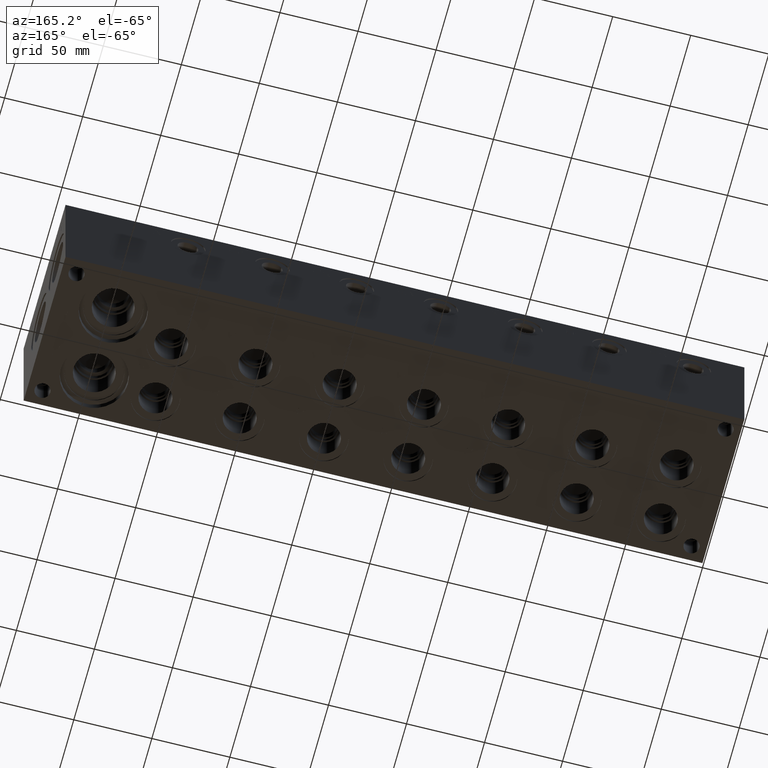
[diagram: clean part render]
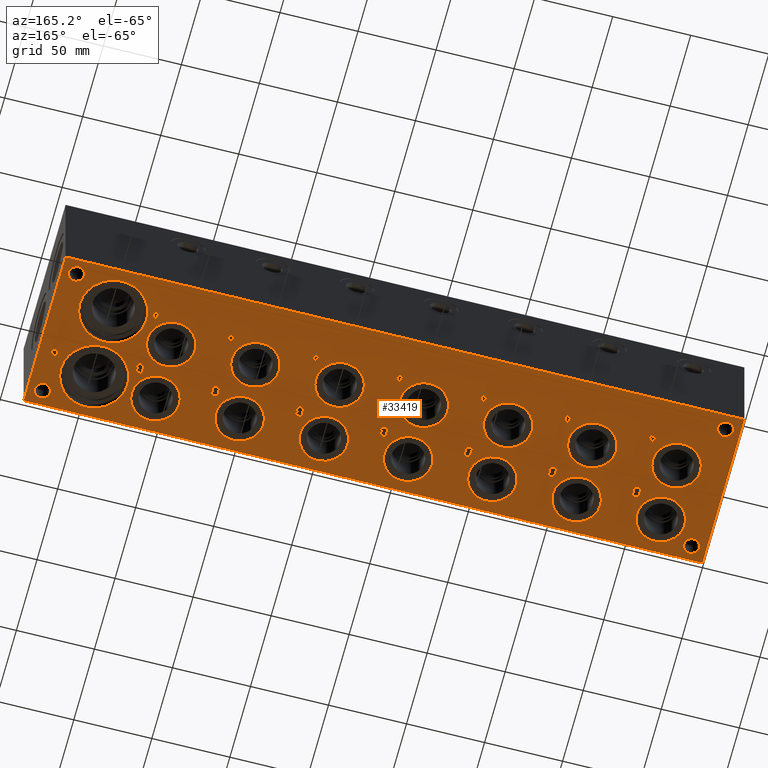
[diagram: same view with one face highlighted and labeled with its STEP entity id]
A machine part, auxiliary view. The second image highlights one B-rep face of the part: STEP entity #33419.
In plain terms, the highlighted planar face has unit normal (0, 0, 1).
Its self-contained STEP definition (entity closure, byte-faithful):
#408=CIRCLE('',#35139,21.4376);
#409=CIRCLE('',#35140,21.4376);
#410=CIRCLE('',#35141,21.4376);
#411=CIRCLE('',#35142,21.4376);
#412=CIRCLE('',#35143,15.3416);
#413=CIRCLE('',#35144,15.3416);
#414=CIRCLE('',#35145,15.3416);
#415=CIRCLE('',#35146,15.3416);
#416=CIRCLE('',#35147,15.3416);
#417=CIRCLE('',#35148,15.3416);
#418=CIRCLE('',#35149,15.3416);
#419=CIRCLE('',#35150,15.3416);
#420=CIRCLE('',#35151,15.3416);
#421=CIRCLE('',#35152,15.3416);
#422=CIRCLE('',#35153,15.3416);
#423=CIRCLE('',#35154,15.3416);
#424=CIRCLE('',#35155,15.3416);
#425=CIRCLE('',#35156,15.3416);
#426=CIRCLE('',#35157,15.3416);
#427=CIRCLE('',#35158,15.3416);
#428=CIRCLE('',#35159,15.3416);
#429=CIRCLE('',#35160,15.3416);
#430=CIRCLE('',#35161,15.3416);
#431=CIRCLE('',#35162,15.3416);
#432=CIRCLE('',#35163,15.3416);
#433=CIRCLE('',#35164,15.3416);
#434=CIRCLE('',#35165,15.3416);
#435=CIRCLE('',#35166,15.3416);
#436=CIRCLE('',#35167,15.3416);
#437=CIRCLE('',#35168,15.3416);
#438=CIRCLE('',#35169,15.3416);
#439=CIRCLE('',#35170,15.3416);
#440=CIRCLE('',#35171,5.0038);
#441=CIRCLE('',#35172,5.0038);
#442=CIRCLE('',#35173,5.0038);
#443=CIRCLE('',#35174,5.0038);
#444=CIRCLE('',#35175,5.0038);
#445=CIRCLE('',#35176,5.0038);
#446=CIRCLE('',#35177,5.0038);
#447=CIRCLE('',#35178,5.0038);
#1346=FACE_BOUND('',#5483,.T.);
#1347=FACE_BOUND('',#5484,.T.);
#1348=FACE_BOUND('',#5485,.T.);
#1349=FACE_BOUND('',#5486,.T.);
#1350=FACE_BOUND('',#5487,.T.);
#1351=FACE_BOUND('',#5488,.T.);
#1352=FACE_BOUND('',#5489,.T.);
#1353=FACE_BOUND('',#5490,.T.);
#1354=FACE_BOUND('',#5491,.T.);
#1355=FACE_BOUND('',#5492,.T.);
#1356=FACE_BOUND('',#5493,.T.);
#1357=FACE_BOUND('',#5494,.T.);
#1358=FACE_BOUND('',#5495,.T.);
#1359=FACE_BOUND('',#5496,.T.);
#1360=FACE_BOUND('',#5497,.T.);
#1361=FACE_BOUND('',#5498,.T.);
#1362=FACE_BOUND('',#5499,.T.);
#1363=FACE_BOUND('',#5500,.T.);
#1364=FACE_BOUND('',#5501,.T.);
#1365=FACE_BOUND('',#5502,.T.);
#1366=FACE_BOUND('',#5503,.T.);
#1367=FACE_BOUND('',#5504,.T.);
#1368=FACE_BOUND('',#5505,.T.);
#1369=FACE_BOUND('',#5506,.T.);
#1370=FACE_BOUND('',#5507,.T.);
#1371=FACE_BOUND('',#5508,.T.);
#1372=FACE_BOUND('',#5509,.T.);
#1373=FACE_BOUND('',#5510,.T.);
#1374=FACE_BOUND('',#5511,.T.);
#1375=FACE_BOUND('',#5512,.T.);
#1376=FACE_BOUND('',#5513,.T.);
#1377=FACE_BOUND('',#5514,.T.);
#1378=FACE_BOUND('',#5515,.T.);
#1379=FACE_BOUND('',#5516,.T.);
#1380=FACE_BOUND('',#5517,.T.);
#1381=FACE_BOUND('',#5518,.T.);
#2001=B_SPLINE_CURVE_WITH_KNOTS('',2,(#48562,#48563,#48564,#48565),
 .UNSPECIFIED.,.F.,.F.,(3,1,3),(0.,1.,2.),.UNSPECIFIED.);
#2003=B_SPLINE_CURVE_WITH_KNOTS('',2,(#48583,#48584,#48585,#48586),
 .UNSPECIFIED.,.F.,.F.,(3,1,3),(0.,1.,2.),.UNSPECIFIED.);
#2005=B_SPLINE_CURVE_WITH_KNOTS('',2,(#48632,#48633,#48634,#48635),
 .UNSPECIFIED.,.F.,.F.,(3,1,3),(0.,1.,2.),.UNSPECIFIED.);
#2007=B_SPLINE_CURVE_WITH_KNOTS('',2,(#48650,#48651,#48652,#48653),
 .UNSPECIFIED.,.F.,.F.,(3,1,3),(0.,1.,2.),.UNSPECIFIED.);
#2009=B_SPLINE_CURVE_WITH_KNOTS('',2,(#48731,#48732,#48733,#48734),
 .UNSPECIFIED.,.F.,.F.,(3,1,3),(0.,1.,2.),.UNSPECIFIED.);
#2010=B_SPLINE_CURVE_WITH_KNOTS('',2,(#48736,#48737,#48738,#48739),
 .UNSPECIFIED.,.F.,.F.,(3,1,3),(0.,1.,2.),.UNSPECIFIED.);
#2011=B_SPLINE_CURVE_WITH_KNOTS('',2,(#48741,#48742,#48743,#48744),
 .UNSPECIFIED.,.F.,.F.,(3,1,3),(0.,1.,2.),.UNSPECIFIED.);
#2012=B_SPLINE_CURVE_WITH_KNOTS('',2,(#48752,#48753,#48754,#48755),
 .UNSPECIFIED.,.F.,.F.,(3,1,3),(0.,1.,2.),.UNSPECIFIED.);
#2013=B_SPLINE_CURVE_WITH_KNOTS('',2,(#48757,#48758,#48759,#48760),
 .UNSPECIFIED.,.F.,.F.,(3,1,3),(0.,1.,2.),.UNSPECIFIED.);
#2014=B_SPLINE_CURVE_WITH_KNOTS('',2,(#48762,#48763,#48764,#48765),
 .UNSPECIFIED.,.F.,.F.,(3,1,3),(0.,1.,2.),.UNSPECIFIED.);
#2015=B_SPLINE_CURVE_WITH_KNOTS('',2,(#48769,#48770,#48771,#48772),
 .UNSPECIFIED.,.F.,.F.,(3,1,3),(0.,1.,2.),.UNSPECIFIED.);
#2016=B_SPLINE_CURVE_WITH_KNOTS('',2,(#48774,#48775,#48776,#48777),
 .UNSPECIFIED.,.F.,.F.,(3,1,3),(0.,1.,2.),.UNSPECIFIED.);
#2017=B_SPLINE_CURVE_WITH_KNOTS('',2,(#48779,#48780,#48781,#48782),
 .UNSPECIFIED.,.F.,.F.,(3,1,3),(0.,1.,2.),.UNSPECIFIED.);
#2018=B_SPLINE_CURVE_WITH_KNOTS('',2,(#48790,#48791,#48792,#48793),
 .UNSPECIFIED.,.F.,.F.,(3,1,3),(0.,1.,2.),.UNSPECIFIED.);
#2019=B_SPLINE_CURVE_WITH_KNOTS('',2,(#48795,#48796,#48797,#48798),
 .UNSPECIFIED.,.F.,.F.,(3,1,3),(0.,1.,2.),.UNSPECIFIED.);
#2020=B_SPLINE_CURVE_WITH_KNOTS('',2,(#48800,#48801,#48802,#48803),
 .UNSPECIFIED.,.F.,.F.,(3,1,3),(0.,1.,2.),.UNSPECIFIED.);
#2021=B_SPLINE_CURVE_WITH_KNOTS('',2,(#48807,#48808,#48809,#48810),
 .UNSPECIFIED.,.F.,.F.,(3,1,3),(0.,1.,2.),.UNSPECIFIED.);
#2022=B_SPLINE_CURVE_WITH_KNOTS('',2,(#48812,#48813,#48814,#48815),
 .UNSPECIFIED.,.F.,.F.,(3,1,3),(0.,1.,2.),.UNSPECIFIED.);
#2023=B_SPLINE_CURVE_WITH_KNOTS('',2,(#48817,#48818,#48819,#48820),
 .UNSPECIFIED.,.F.,.F.,(3,1,3),(0.,1.,2.),.UNSPECIFIED.);
#2024=B_SPLINE_CURVE_WITH_KNOTS('',2,(#48828,#48829,#48830,#48831),
 .UNSPECIFIED.,.F.,.F.,(3,1,3),(0.,1.,2.),.UNSPECIFIED.);
#2025=B_SPLINE_CURVE_WITH_KNOTS('',2,(#48833,#48834,#48835,#48836),
 .UNSPECIFIED.,.F.,.F.,(3,1,3),(0.,1.,2.),.UNSPECIFIED.);
#2026=B_SPLINE_CURVE_WITH_KNOTS('',2,(#48838,#48839,#48840,#48841),
 .UNSPECIFIED.,.F.,.F.,(3,1,3),(0.,1.,2.),.UNSPECIFIED.);
#2027=B_SPLINE_CURVE_WITH_KNOTS('',2,(#48845,#48846,#48847,#48848),
 .UNSPECIFIED.,.F.,.F.,(3,1,3),(0.,1.,2.),.UNSPECIFIED.);
#2028=B_SPLINE_CURVE_WITH_KNOTS('',2,(#48850,#48851,#48852,#48853),
 .UNSPECIFIED.,.F.,.F.,(3,1,3),(0.,1.,2.),.UNSPECIFIED.);
#2029=B_SPLINE_CURVE_WITH_KNOTS('',2,(#48855,#48856,#48857,#48858),
 .UNSPECIFIED.,.F.,.F.,(3,1,3),(0.,1.,2.),.UNSPECIFIED.);
#2030=B_SPLINE_CURVE_WITH_KNOTS('',2,(#48866,#48867,#48868,#48869),
 .UNSPECIFIED.,.F.,.F.,(3,1,3),(0.,1.,2.),.UNSPECIFIED.);
#2031=B_SPLINE_CURVE_WITH_KNOTS('',2,(#48871,#48872,#48873,#48874),
 .UNSPECIFIED.,.F.,.F.,(3,1,3),(0.,1.,2.),.UNSPECIFIED.);
#2032=B_SPLINE_CURVE_WITH_KNOTS('',2,(#48876,#48877,#48878,#48879),
 .UNSPECIFIED.,.F.,.F.,(3,1,3),(0.,1.,2.),.UNSPECIFIED.);
#2033=B_SPLINE_CURVE_WITH_KNOTS('',2,(#48883,#48884,#48885,#48886),
 .UNSPECIFIED.,.F.,.F.,(3,1,3),(0.,1.,2.),.UNSPECIFIED.);
#2034=B_SPLINE_CURVE_WITH_KNOTS('',2,(#48888,#48889,#48890,#48891),
 .UNSPECIFIED.,.F.,.F.,(3,1,3),(0.,1.,2.),.UNSPECIFIED.);
#2035=B_SPLINE_CURVE_WITH_KNOTS('',2,(#48893,#48894,#48895,#48896),
 .UNSPECIFIED.,.F.,.F.,(3,1,3),(0.,1.,2.),.UNSPECIFIED.);
#2036=B_SPLINE_CURVE_WITH_KNOTS('',2,(#48904,#48905,#48906,#48907),
 .UNSPECIFIED.,.F.,.F.,(3,1,3),(0.,1.,2.),.UNSPECIFIED.);
#2037=B_SPLINE_CURVE_WITH_KNOTS('',2,(#48909,#48910,#48911,#48912),
 .UNSPECIFIED.,.F.,.F.,(3,1,3),(0.,1.,2.),.UNSPECIFIED.);
#2038=B_SPLINE_CURVE_WITH_KNOTS('',2,(#48914,#48915,#48916,#48917),
 .UNSPECIFIED.,.F.,.F.,(3,1,3),(0.,1.,2.),.UNSPECIFIED.);
#2039=B_SPLINE_CURVE_WITH_KNOTS('',2,(#48921,#48922,#48923,#48924),
 .UNSPECIFIED.,.F.,.F.,(3,1,3),(0.,1.,2.),.UNSPECIFIED.);
#2040=B_SPLINE_CURVE_WITH_KNOTS('',2,(#48926,#48927,#48928,#48929),
 .UNSPECIFIED.,.F.,.F.,(3,1,3),(0.,1.,2.),.UNSPECIFIED.);
#2041=B_SPLINE_CURVE_WITH_KNOTS('',2,(#48931,#48932,#48933,#48934),
 .UNSPECIFIED.,.F.,.F.,(3,1,3),(0.,1.,2.),.UNSPECIFIED.);
#2042=B_SPLINE_CURVE_WITH_KNOTS('',2,(#48942,#48943,#48944,#48945),
 .UNSPECIFIED.,.F.,.F.,(3,1,3),(0.,1.,2.),.UNSPECIFIED.);
#2043=B_SPLINE_CURVE_WITH_KNOTS('',2,(#48947,#48948,#48949,#48950),
 .UNSPECIFIED.,.F.,.F.,(3,1,3),(0.,1.,2.),.UNSPECIFIED.);
#2044=B_SPLINE_CURVE_WITH_KNOTS('',2,(#48952,#48953,#48954,#48955),
 .UNSPECIFIED.,.F.,.F.,(3,1,3),(0.,1.,2.),.UNSPECIFIED.);
#2045=B_SPLINE_CURVE_WITH_KNOTS('',2,(#48959,#48960,#48961,#48962),
 .UNSPECIFIED.,.F.,.F.,(3,1,3),(0.,1.,2.),.UNSPECIFIED.);
#2046=B_SPLINE_CURVE_WITH_KNOTS('',2,(#48964,#48965,#48966,#48967),
 .UNSPECIFIED.,.F.,.F.,(3,1,3),(0.,1.,2.),.UNSPECIFIED.);
#2047=B_SPLINE_CURVE_WITH_KNOTS('',2,(#48969,#48970,#48971,#48972),
 .UNSPECIFIED.,.F.,.F.,(3,1,3),(0.,1.,2.),.UNSPECIFIED.);
#2048=B_SPLINE_CURVE_WITH_KNOTS('',2,(#48980,#48981,#48982,#48983),
 .UNSPECIFIED.,.F.,.F.,(3,1,3),(0.,1.,2.),.UNSPECIFIED.);
#2049=B_SPLINE_CURVE_WITH_KNOTS('',2,(#48985,#48986,#48987,#48988),
 .UNSPECIFIED.,.F.,.F.,(3,1,3),(0.,1.,2.),.UNSPECIFIED.);
#2050=B_SPLINE_CURVE_WITH_KNOTS('',2,(#48990,#48991,#48992,#48993),
 .UNSPECIFIED.,.F.,.F.,(3,1,3),(0.,1.,2.),.UNSPECIFIED.);
#3623=FACE_OUTER_BOUND('',#5482,.T.);
#5482=EDGE_LOOP('',(#23350,#23351,#23352,#23353));
#5483=EDGE_LOOP('',(#23354,#23355,#23356,#23357,#23358,#23359,#23360,#23361));
#5484=EDGE_LOOP('',(#23362,#23363,#23364,#23365,#23366,#23367,#23368,#23369));
#5485=EDGE_LOOP('',(#23370,#23371,#23372,#23373,#23374,#23375,#23376,#23377));
#5486=EDGE_LOOP('',(#23378,#23379,#23380,#23381,#23382,#23383,#23384,#23385));
#5487=EDGE_LOOP('',(#23386,#23387,#23388,#23389,#23390,#23391,#23392,#23393));
#5488=EDGE_LOOP('',(#23394,#23395,#23396,#23397,#23398,#23399,#23400,#23401,
#23402,#23403));
#5489=EDGE_LOOP('',(#23404,#23405,#23406,#23407,#23408,#23409,#23410,#23411,
#23412,#23413));
#5490=EDGE_LOOP('',(#23414,#23415,#23416,#23417,#23418,#23419,#23420,#23421,
#23422,#23423));
#5491=EDGE_LOOP('',(#23424,#23425,#23426,#23427,#23428,#23429,#23430,#23431,
#23432,#23433));
#5492=EDGE_LOOP('',(#23434,#23435,#23436,#23437,#23438,#23439,#23440,#23441,
#23442,#23443));
#5493=EDGE_LOOP('',(#23444,#23445,#23446,#23447,#23448,#23449,#23450,#23451,
#23452,#23453));
#5494=EDGE_LOOP('',(#23454,#23455,#23456,#23457,#23458,#23459,#23460,#23461,
#23462,#23463));
#5495=EDGE_LOOP('',(#23464,#23465));
#5496=EDGE_LOOP('',(#23466,#23467));
#5497=EDGE_LOOP('',(#23468,#23469));
#5498=EDGE_LOOP('',(#23470,#23471));
#5499=EDGE_LOOP('',(#23472,#23473));
#5500=EDGE_LOOP('',(#23474,#23475));
#5501=EDGE_LOOP('',(#23476,#23477));
#5502=EDGE_LOOP('',(#23478,#23479));
#5503=EDGE_LOOP('',(#23480,#23481));
#5504=EDGE_LOOP('',(#23482,#23483));
#5505=EDGE_LOOP('',(#23484,#23485));
#5506=EDGE_LOOP('',(#23486,#23487));
#5507=EDGE_LOOP('',(#23488,#23489));
#5508=EDGE_LOOP('',(#23490,#23491));
#5509=EDGE_LOOP('',(#23492,#23493));
#5510=EDGE_LOOP('',(#23494,#23495));
#5511=EDGE_LOOP('',(#23496,#23497));
#5512=EDGE_LOOP('',(#23498,#23499));
#5513=EDGE_LOOP('',(#23500,#23501));
#5514=EDGE_LOOP('',(#23502,#23503));
#5515=EDGE_LOOP('',(#23504,#23505,#23506,#23507,#23508,#23509,#23510,#23511));
#5516=EDGE_LOOP('',(#23512,#23513,#23514,#23515,#23516,#23517,#23518,#23519));
#5517=EDGE_LOOP('',(#23520,#23521,#23522,#23523,#23524,#23525,#23526,#23527));
#5518=EDGE_LOOP('',(#23528,#23529,#23530,#23531,#23532,#23533,#23534,#23535,
#23536));
#7506=LINE('',#46493,#10370);
#7976=LINE('',#48412,#10840);
#7980=LINE('',#48420,#10844);
#7983=LINE('',#48426,#10847);
#7986=LINE('',#48432,#10850);
#7989=LINE('',#48438,#10853);
#7992=LINE('',#48444,#10856);
#7995=LINE('',#48450,#10859);
#7998=LINE('',#48455,#10862);
#8016=LINE('',#48595,#10880);
#8019=LINE('',#48601,#10883);
#8022=LINE('',#48607,#10886);
#8025=LINE('',#48613,#10889);
#8028=LINE('',#48619,#10892);
#8032=LINE('',#48661,#10896);
#8033=LINE('',#48663,#10897);
#8034=LINE('',#48664,#10898);
#8035=LINE('',#48667,#10899);
#8036=LINE('',#48669,#10900);
#8037=LINE('',#48671,#10901);
#8038=LINE('',#48673,#10902);
#8039=LINE('',#48675,#10903);
#8040=LINE('',#48677,#10904);
#8041=LINE('',#48679,#10905);
#8042=LINE('',#48680,#10906);
#8043=LINE('',#48683,#10907);
#8044=LINE('',#48685,#10908);
#8045=LINE('',#48687,#10909);
#8046=LINE('',#48689,#10910);
#8047=LINE('',#48691,#10911);
#8048=LINE('',#48693,#10912);
#8049=LINE('',#48695,#10913);
#8050=LINE('',#48696,#10914);
#8051=LINE('',#48699,#10915);
#8052=LINE('',#48701,#10916);
#8053=LINE('',#48703,#10917);
#8054=LINE('',#48705,#10918);
#8055=LINE('',#48707,#10919);
#8056=LINE('',#48709,#10920);
#8057=LINE('',#48711,#10921);
#8058=LINE('',#48712,#10922);
#8059=LINE('',#48715,#10923);
#8060=LINE('',#48717,#10924);
#8061=LINE('',#48719,#10925);
#8062=LINE('',#48721,#10926);
#8063=LINE('',#48723,#10927);
#8064=LINE('',#48725,#10928);
#8065=LINE('',#48727,#10929);
#8066=LINE('',#48728,#10930);
#8067=LINE('',#48746,#10931);
#8068=LINE('',#48748,#10932);
#8069=LINE('',#48750,#10933);
#8070=LINE('',#48766,#10934);
#8071=LINE('',#48784,#10935);
#8072=LINE('',#48786,#10936);
#8073=LINE('',#48788,#10937);
#8074=LINE('',#48804,#10938);
#8075=LINE('',#48822,#10939);
#8076=LINE('',#48824,#10940);
#8077=LINE('',#48826,#10941);
#8078=LINE('',#48842,#10942);
#8079=LINE('',#48860,#10943);
#8080=LINE('',#48862,#10944);
#8081=LINE('',#48864,#10945);
#8082=LINE('',#48880,#10946);
#8083=LINE('',#48898,#10947);
#8084=LINE('',#48900,#10948);
#8085=LINE('',#48902,#10949);
#8086=LINE('',#48918,#10950);
#8087=LINE('',#48936,#10951);
#8088=LINE('',#48938,#10952);
#8089=LINE('',#48940,#10953);
#8090=LINE('',#48956,#10954);
#8091=LINE('',#48974,#10955);
#8092=LINE('',#48976,#10956);
#8093=LINE('',#48978,#10957);
#8094=LINE('',#48994,#10958);
#8095=LINE('',#49077,#10959);
#8096=LINE('',#49079,#10960);
#8097=LINE('',#49081,#10961);
#8098=LINE('',#49083,#10962);
#8099=LINE('',#49085,#10963);
#8100=LINE('',#49087,#10964);
#8101=LINE('',#49089,#10965);
#8102=LINE('',#49090,#10966);
#8103=LINE('',#49093,#10967);
#8104=LINE('',#49095,#10968);
#8105=LINE('',#49097,#10969);
#8106=LINE('',#49099,#10970);
#8107=LINE('',#49101,#10971);
#8108=LINE('',#49103,#10972);
#8109=LINE('',#49105,#10973);
#8110=LINE('',#49106,#10974);
#8111=LINE('',#49109,#10975);
#8112=LINE('',#49111,#10976);
#8113=LINE('',#49113,#10977);
#8114=LINE('',#49115,#10978);
#8115=LINE('',#49117,#10979);
#8116=LINE('',#49119,#10980);
#8117=LINE('',#49121,#10981);
#8118=LINE('',#49122,#10982);
#10370=VECTOR('',#37493,10.);
#10840=VECTOR('',#38283,10.);
#10844=VECTOR('',#38289,10.);
#10847=VECTOR('',#38294,10.);
#10850=VECTOR('',#38299,10.);
#10853=VECTOR('',#38304,10.);
#10856=VECTOR('',#38309,10.);
#10859=VECTOR('',#38314,10.);
#10862=VECTOR('',#38319,10.);
#10880=VECTOR('',#38347,10.);
#10883=VECTOR('',#38352,10.);
#10886=VECTOR('',#38357,10.);
#10889=VECTOR('',#38362,10.);
#10892=VECTOR('',#38367,10.);
#10896=VECTOR('',#38375,10.);
#10897=VECTOR('',#38376,10.);
#10898=VECTOR('',#38377,10.);
#10899=VECTOR('',#38378,10.);
#10900=VECTOR('',#38379,10.);
#10901=VECTOR('',#38380,10.);
#10902=VECTOR('',#38381,10.);
#10903=VECTOR('',#38382,10.);
#10904=VECTOR('',#38383,10.);
#10905=VECTOR('',#38384,10.);
#10906=VECTOR('',#38385,10.);
#10907=VECTOR('',#38386,10.);
#10908=VECTOR('',#38387,10.);
#10909=VECTOR('',#38388,10.);
#10910=VECTOR('',#38389,10.);
#10911=VECTOR('',#38390,10.);
#10912=VECTOR('',#38391,10.);
#10913=VECTOR('',#38392,10.);
#10914=VECTOR('',#38393,10.);
#10915=VECTOR('',#38394,10.);
#10916=VECTOR('',#38395,10.);
#10917=VECTOR('',#38396,10.);
#10918=VECTOR('',#38397,10.);
#10919=VECTOR('',#38398,10.);
#10920=VECTOR('',#38399,10.);
#10921=VECTOR('',#38400,10.);
#10922=VECTOR('',#38401,10.);
#10923=VECTOR('',#38402,10.);
#10924=VECTOR('',#38403,10.);
#10925=VECTOR('',#38404,10.);
#10926=VECTOR('',#38405,10.);
#10927=VECTOR('',#38406,10.);
#10928=VECTOR('',#38407,10.);
#10929=VECTOR('',#38408,10.);
#10930=VECTOR('',#38409,10.);
#10931=VECTOR('',#38410,10.);
#10932=VECTOR('',#38411,10.);
#10933=VECTOR('',#38412,10.);
#10934=VECTOR('',#38413,10.);
#10935=VECTOR('',#38414,10.);
#10936=VECTOR('',#38415,10.);
#10937=VECTOR('',#38416,10.);
#10938=VECTOR('',#38417,10.);
#10939=VECTOR('',#38418,10.);
#10940=VECTOR('',#38419,10.);
#10941=VECTOR('',#38420,10.);
#10942=VECTOR('',#38421,10.);
#10943=VECTOR('',#38422,10.);
#10944=VECTOR('',#38423,10.);
#10945=VECTOR('',#38424,10.);
#10946=VECTOR('',#38425,10.);
#10947=VECTOR('',#38426,10.);
#10948=VECTOR('',#38427,10.);
#10949=VECTOR('',#38428,10.);
#10950=VECTOR('',#38429,10.);
#10951=VECTOR('',#38430,10.);
#10952=VECTOR('',#38431,10.);
#10953=VECTOR('',#38432,10.);
#10954=VECTOR('',#38433,10.);
#10955=VECTOR('',#38434,10.);
#10956=VECTOR('',#38435,10.);
#10957=VECTOR('',#38436,10.);
#10958=VECTOR('',#38437,10.);
#10959=VECTOR('',#38518,10.);
#10960=VECTOR('',#38519,10.);
#10961=VECTOR('',#38520,10.);
#10962=VECTOR('',#38521,10.);
#10963=VECTOR('',#38522,10.);
#10964=VECTOR('',#38523,10.);
#10965=VECTOR('',#38524,10.);
#10966=VECTOR('',#38525,10.);
#10967=VECTOR('',#38526,10.);
#10968=VECTOR('',#38527,10.);
#10969=VECTOR('',#38528,10.);
#10970=VECTOR('',#38529,10.);
#10971=VECTOR('',#38530,10.);
#10972=VECTOR('',#38531,10.);
#10973=VECTOR('',#38532,10.);
#10974=VECTOR('',#38533,10.);
#10975=VECTOR('',#38534,10.);
#10976=VECTOR('',#38535,10.);
#10977=VECTOR('',#38536,10.);
#10978=VECTOR('',#38537,10.);
#10979=VECTOR('',#38538,10.);
#10980=VECTOR('',#38539,10.);
#10981=VECTOR('',#38540,10.);
#10982=VECTOR('',#38541,10.);
#13266=VERTEX_POINT('',#46491);
#13267=VERTEX_POINT('',#46492);
#13795=VERTEX_POINT('',#48410);
#13796=VERTEX_POINT('',#48411);
#13799=VERTEX_POINT('',#48419);
#13801=VERTEX_POINT('',#48425);
#13803=VERTEX_POINT('',#48431);
#13805=VERTEX_POINT('',#48437);
#13807=VERTEX_POINT('',#48443);
#13809=VERTEX_POINT('',#48449);
#13825=VERTEX_POINT('',#48560);
#13826=VERTEX_POINT('',#48561);
#13829=VERTEX_POINT('',#48582);
#13831=VERTEX_POINT('',#48594);
#13833=VERTEX_POINT('',#48600);
#13835=VERTEX_POINT('',#48606);
#13837=VERTEX_POINT('',#48612);
#13839=VERTEX_POINT('',#48618);
#13841=VERTEX_POINT('',#48631);
#13843=VERTEX_POINT('',#48660);
#13844=VERTEX_POINT('',#48662);
#13845=VERTEX_POINT('',#48665);
#13846=VERTEX_POINT('',#48666);
#13847=VERTEX_POINT('',#48668);
#13848=VERTEX_POINT('',#48670);
#13849=VERTEX_POINT('',#48672);
#13850=VERTEX_POINT('',#48674);
#13851=VERTEX_POINT('',#48676);
#13852=VERTEX_POINT('',#48678);
#13853=VERTEX_POINT('',#48681);
#13854=VERTEX_POINT('',#48682);
#13855=VERTEX_POINT('',#48684);
#13856=VERTEX_POINT('',#48686);
#13857=VERTEX_POINT('',#48688);
#13858=VERTEX_POINT('',#48690);
#13859=VERTEX_POINT('',#48692);
#13860=VERTEX_POINT('',#48694);
#13861=VERTEX_POINT('',#48697);
#13862=VERTEX_POINT('',#48698);
#13863=VERTEX_POINT('',#48700);
#13864=VERTEX_POINT('',#48702);
#13865=VERTEX_POINT('',#48704);
#13866=VERTEX_POINT('',#48706);
#13867=VERTEX_POINT('',#48708);
#13868=VERTEX_POINT('',#48710);
#13869=VERTEX_POINT('',#48713);
#13870=VERTEX_POINT('',#48714);
#13871=VERTEX_POINT('',#48716);
#13872=VERTEX_POINT('',#48718);
#13873=VERTEX_POINT('',#48720);
#13874=VERTEX_POINT('',#48722);
#13875=VERTEX_POINT('',#48724);
#13876=VERTEX_POINT('',#48726);
#13877=VERTEX_POINT('',#48729);
#13878=VERTEX_POINT('',#48730);
#13879=VERTEX_POINT('',#48735);
#13880=VERTEX_POINT('',#48740);
#13881=VERTEX_POINT('',#48745);
#13882=VERTEX_POINT('',#48747);
#13883=VERTEX_POINT('',#48749);
#13884=VERTEX_POINT('',#48751);
#13885=VERTEX_POINT('',#48756);
#13886=VERTEX_POINT('',#48761);
#13887=VERTEX_POINT('',#48767);
#13888=VERTEX_POINT('',#48768);
#13889=VERTEX_POINT('',#48773);
#13890=VERTEX_POINT('',#48778);
#13891=VERTEX_POINT('',#48783);
#13892=VERTEX_POINT('',#48785);
#13893=VERTEX_POINT('',#48787);
#13894=VERTEX_POINT('',#48789);
#13895=VERTEX_POINT('',#48794);
#13896=VERTEX_POINT('',#48799);
#13897=VERTEX_POINT('',#48805);
#13898=VERTEX_POINT('',#48806);
#13899=VERTEX_POINT('',#48811);
#13900=VERTEX_POINT('',#48816);
#13901=VERTEX_POINT('',#48821);
#13902=VERTEX_POINT('',#48823);
#13903=VERTEX_POINT('',#48825);
#13904=VERTEX_POINT('',#48827);
#13905=VERTEX_POINT('',#48832);
#13906=VERTEX_POINT('',#48837);
#13907=VERTEX_POINT('',#48843);
#13908=VERTEX_POINT('',#48844);
#13909=VERTEX_POINT('',#48849);
#13910=VERTEX_POINT('',#48854);
#13911=VERTEX_POINT('',#48859);
#13912=VERTEX_POINT('',#48861);
#13913=VERTEX_POINT('',#48863);
#13914=VERTEX_POINT('',#48865);
#13915=VERTEX_POINT('',#48870);
#13916=VERTEX_POINT('',#48875);
#13917=VERTEX_POINT('',#48881);
#13918=VERTEX_POINT('',#48882);
#13919=VERTEX_POINT('',#48887);
#13920=VERTEX_POINT('',#48892);
#13921=VERTEX_POINT('',#48897);
#13922=VERTEX_POINT('',#48899);
#13923=VERTEX_POINT('',#48901);
#13924=VERTEX_POINT('',#48903);
#13925=VERTEX_POINT('',#48908);
#13926=VERTEX_POINT('',#48913);
#13927=VERTEX_POINT('',#48919);
#13928=VERTEX_POINT('',#48920);
#13929=VERTEX_POINT('',#48925);
#13930=VERTEX_POINT('',#48930);
#13931=VERTEX_POINT('',#48935);
#13932=VERTEX_POINT('',#48937);
#13933=VERTEX_POINT('',#48939);
#13934=VERTEX_POINT('',#48941);
#13935=VERTEX_POINT('',#48946);
#13936=VERTEX_POINT('',#48951);
#13937=VERTEX_POINT('',#48957);
#13938=VERTEX_POINT('',#48958);
#13939=VERTEX_POINT('',#48963);
#13940=VERTEX_POINT('',#48968);
#13941=VERTEX_POINT('',#48973);
#13942=VERTEX_POINT('',#48975);
#13943=VERTEX_POINT('',#48977);
#13944=VERTEX_POINT('',#48979);
#13945=VERTEX_POINT('',#48984);
#13946=VERTEX_POINT('',#48989);
#13947=VERTEX_POINT('',#48995);
#13948=VERTEX_POINT('',#48996);
#13949=VERTEX_POINT('',#48999);
#13950=VERTEX_POINT('',#49000);
#13951=VERTEX_POINT('',#49003);
#13952=VERTEX_POINT('',#49004);
#13953=VERTEX_POINT('',#49007);
#13954=VERTEX_POINT('',#49008);
#13955=VERTEX_POINT('',#49011);
#13956=VERTEX_POINT('',#49012);
#13957=VERTEX_POINT('',#49015);
#13958=VERTEX_POINT('',#49016);
#13959=VERTEX_POINT('',#49019);
#13960=VERTEX_POINT('',#49020);
#13961=VERTEX_POINT('',#49023);
#13962=VERTEX_POINT('',#49024);
#13963=VERTEX_POINT('',#49027);
#13964=VERTEX_POINT('',#49028);
#13965=VERTEX_POINT('',#49031);
#13966=VERTEX_POINT('',#49032);
#13967=VERTEX_POINT('',#49035);
#13968=VERTEX_POINT('',#49036);
#13969=VERTEX_POINT('',#49039);
#13970=VERTEX_POINT('',#49040);
#13971=VERTEX_POINT('',#49043);
#13972=VERTEX_POINT('',#49044);
#13973=VERTEX_POINT('',#49047);
#13974=VERTEX_POINT('',#49048);
#13975=VERTEX_POINT('',#49051);
#13976=VERTEX_POINT('',#49052);
#13977=VERTEX_POINT('',#49055);
#13978=VERTEX_POINT('',#49056);
#13979=VERTEX_POINT('',#49059);
#13980=VERTEX_POINT('',#49060);
#13981=VERTEX_POINT('',#49063);
#13982=VERTEX_POINT('',#49064);
#13983=VERTEX_POINT('',#49067);
#13984=VERTEX_POINT('',#49068);
#13985=VERTEX_POINT('',#49071);
#13986=VERTEX_POINT('',#49072);
#13987=VERTEX_POINT('',#49075);
#13988=VERTEX_POINT('',#49076);
#13989=VERTEX_POINT('',#49078);
#13990=VERTEX_POINT('',#49080);
#13991=VERTEX_POINT('',#49082);
#13992=VERTEX_POINT('',#49084);
#13993=VERTEX_POINT('',#49086);
#13994=VERTEX_POINT('',#49088);
#13995=VERTEX_POINT('',#49091);
#13996=VERTEX_POINT('',#49092);
#13997=VERTEX_POINT('',#49094);
#13998=VERTEX_POINT('',#49096);
#13999=VERTEX_POINT('',#49098);
#14000=VERTEX_POINT('',#49100);
#14001=VERTEX_POINT('',#49102);
#14002=VERTEX_POINT('',#49104);
#14003=VERTEX_POINT('',#49107);
#14004=VERTEX_POINT('',#49108);
#14005=VERTEX_POINT('',#49110);
#14006=VERTEX_POINT('',#49112);
#14007=VERTEX_POINT('',#49114);
#14008=VERTEX_POINT('',#49116);
#14009=VERTEX_POINT('',#49118);
#14010=VERTEX_POINT('',#49120);
#16822=EDGE_CURVE('',#13266,#13267,#7506,.T.);
#17482=EDGE_CURVE('',#13795,#13796,#7976,.T.);
#17486=EDGE_CURVE('',#13799,#13795,#7980,.T.);
#17489=EDGE_CURVE('',#13801,#13799,#7983,.T.);
#17492=EDGE_CURVE('',#13803,#13801,#7986,.T.);
#17495=EDGE_CURVE('',#13805,#13803,#7989,.T.);
#17498=EDGE_CURVE('',#13807,#13805,#7992,.T.);
#17501=EDGE_CURVE('',#13809,#13807,#7995,.T.);
#17504=EDGE_CURVE('',#13796,#13809,#7998,.T.);
#17527=EDGE_CURVE('',#13825,#13826,#2001,.T.);
#17531=EDGE_CURVE('',#13829,#13825,#2003,.T.);
#17534=EDGE_CURVE('',#13831,#13829,#8016,.T.);
#17537=EDGE_CURVE('',#13833,#13831,#8019,.T.);
#17540=EDGE_CURVE('',#13835,#13833,#8022,.T.);
#17543=EDGE_CURVE('',#13837,#13835,#8025,.T.);
#17546=EDGE_CURVE('',#13839,#13837,#8028,.T.);
#17549=EDGE_CURVE('',#13841,#13839,#2005,.T.);
#17552=EDGE_CURVE('',#13826,#13841,#2007,.T.);
#17554=EDGE_CURVE('',#13843,#13266,#8032,.T.);
#17555=EDGE_CURVE('',#13844,#13843,#8033,.T.);
#17556=EDGE_CURVE('',#13267,#13844,#8034,.T.);
#17557=EDGE_CURVE('',#13845,#13846,#8035,.T.);
#17558=EDGE_CURVE('',#13846,#13847,#8036,.T.);
#17559=EDGE_CURVE('',#13847,#13848,#8037,.T.);
#17560=EDGE_CURVE('',#13848,#13849,#8038,.T.);
#17561=EDGE_CURVE('',#13849,#13850,#8039,.T.);
#17562=EDGE_CURVE('',#13850,#13851,#8040,.T.);
#17563=EDGE_CURVE('',#13851,#13852,#8041,.T.);
#17564=EDGE_CURVE('',#13852,#13845,#8042,.T.);
#17565=EDGE_CURVE('',#13853,#13854,#8043,.T.);
#17566=EDGE_CURVE('',#13854,#13855,#8044,.T.);
#17567=EDGE_CURVE('',#13855,#13856,#8045,.T.);
#17568=EDGE_CURVE('',#13856,#13857,#8046,.T.);
#17569=EDGE_CURVE('',#13857,#13858,#8047,.T.);
#17570=EDGE_CURVE('',#13858,#13859,#8048,.T.);
#17571=EDGE_CURVE('',#13859,#13860,#8049,.T.);
#17572=EDGE_CURVE('',#13860,#13853,#8050,.T.);
#17573=EDGE_CURVE('',#13861,#13862,#8051,.T.);
#17574=EDGE_CURVE('',#13862,#13863,#8052,.T.);
#17575=EDGE_CURVE('',#13863,#13864,#8053,.T.);
#17576=EDGE_CURVE('',#13864,#13865,#8054,.T.);
#17577=EDGE_CURVE('',#13865,#13866,#8055,.T.);
#17578=EDGE_CURVE('',#13866,#13867,#8056,.T.);
#17579=EDGE_CURVE('',#13867,#13868,#8057,.T.);
#17580=EDGE_CURVE('',#13868,#13861,#8058,.T.);
#17581=EDGE_CURVE('',#13869,#13870,#8059,.T.);
#17582=EDGE_CURVE('',#13870,#13871,#8060,.T.);
#17583=EDGE_CURVE('',#13871,#13872,#8061,.T.);
#17584=EDGE_CURVE('',#13872,#13873,#8062,.T.);
#17585=EDGE_CURVE('',#13873,#13874,#8063,.T.);
#17586=EDGE_CURVE('',#13874,#13875,#8064,.T.);
#17587=EDGE_CURVE('',#13875,#13876,#8065,.T.);
#17588=EDGE_CURVE('',#13876,#13869,#8066,.T.);
#17589=EDGE_CURVE('',#13877,#13878,#2009,.T.);
#17590=EDGE_CURVE('',#13878,#13879,#2010,.T.);
#17591=EDGE_CURVE('',#13879,#13880,#2011,.T.);
#17592=EDGE_CURVE('',#13880,#13881,#8067,.T.);
#17593=EDGE_CURVE('',#13881,#13882,#8068,.T.);
#17594=EDGE_CURVE('',#13882,#13883,#8069,.T.);
#17595=EDGE_CURVE('',#13883,#13884,#2012,.T.);
#17596=EDGE_CURVE('',#13884,#13885,#2013,.T.);
#17597=EDGE_CURVE('',#13885,#13886,#2014,.T.);
#17598=EDGE_CURVE('',#13886,#13877,#8070,.T.);
#17599=EDGE_CURVE('',#13887,#13888,#2015,.T.);
#17600=EDGE_CURVE('',#13888,#13889,#2016,.T.);
#17601=EDGE_CURVE('',#13889,#13890,#2017,.T.);
#17602=EDGE_CURVE('',#13890,#13891,#8071,.T.);
#17603=EDGE_CURVE('',#13891,#13892,#8072,.T.);
#17604=EDGE_CURVE('',#13892,#13893,#8073,.T.);
#17605=EDGE_CURVE('',#13893,#13894,#2018,.T.);
#17606=EDGE_CURVE('',#13894,#13895,#2019,.T.);
#17607=EDGE_CURVE('',#13895,#13896,#2020,.T.);
#17608=EDGE_CURVE('',#13896,#13887,#8074,.T.);
#17609=EDGE_CURVE('',#13897,#13898,#2021,.T.);
#17610=EDGE_CURVE('',#13898,#13899,#2022,.T.);
#17611=EDGE_CURVE('',#13899,#13900,#2023,.T.);
#17612=EDGE_CURVE('',#13900,#13901,#8075,.T.);
#17613=EDGE_CURVE('',#13901,#13902,#8076,.T.);
#17614=EDGE_CURVE('',#13902,#13903,#8077,.T.);
#17615=EDGE_CURVE('',#13903,#13904,#2024,.T.);
#17616=EDGE_CURVE('',#13904,#13905,#2025,.T.);
#17617=EDGE_CURVE('',#13905,#13906,#2026,.T.);
#17618=EDGE_CURVE('',#13906,#13897,#8078,.T.);
#17619=EDGE_CURVE('',#13907,#13908,#2027,.T.);
#17620=EDGE_CURVE('',#13908,#13909,#2028,.T.);
#17621=EDGE_CURVE('',#13909,#13910,#2029,.T.);
#17622=EDGE_CURVE('',#13910,#13911,#8079,.T.);
#17623=EDGE_CURVE('',#13911,#13912,#8080,.T.);
#17624=EDGE_CURVE('',#13912,#13913,#8081,.T.);
#17625=EDGE_CURVE('',#13913,#13914,#2030,.T.);
#17626=EDGE_CURVE('',#13914,#13915,#2031,.T.);
#17627=EDGE_CURVE('',#13915,#13916,#2032,.T.);
#17628=EDGE_CURVE('',#13916,#13907,#8082,.T.);
#17629=EDGE_CURVE('',#13917,#13918,#2033,.T.);
#17630=EDGE_CURVE('',#13918,#13919,#2034,.T.);
#17631=EDGE_CURVE('',#13919,#13920,#2035,.T.);
#17632=EDGE_CURVE('',#13920,#13921,#8083,.T.);
#17633=EDGE_CURVE('',#13921,#13922,#8084,.T.);
#17634=EDGE_CURVE('',#13922,#13923,#8085,.T.);
#17635=EDGE_CURVE('',#13923,#13924,#2036,.T.);
#17636=EDGE_CURVE('',#13924,#13925,#2037,.T.);
#17637=EDGE_CURVE('',#13925,#13926,#2038,.T.);
#17638=EDGE_CURVE('',#13926,#13917,#8086,.T.);
#17639=EDGE_CURVE('',#13927,#13928,#2039,.T.);
#17640=EDGE_CURVE('',#13928,#13929,#2040,.T.);
#17641=EDGE_CURVE('',#13929,#13930,#2041,.T.);
#17642=EDGE_CURVE('',#13930,#13931,#8087,.T.);
#17643=EDGE_CURVE('',#13931,#13932,#8088,.T.);
#17644=EDGE_CURVE('',#13932,#13933,#8089,.T.);
#17645=EDGE_CURVE('',#13933,#13934,#2042,.T.);
#17646=EDGE_CURVE('',#13934,#13935,#2043,.T.);
#17647=EDGE_CURVE('',#13935,#13936,#2044,.T.);
#17648=EDGE_CURVE('',#13936,#13927,#8090,.T.);
#17649=EDGE_CURVE('',#13937,#13938,#2045,.T.);
#17650=EDGE_CURVE('',#13938,#13939,#2046,.T.);
#17651=EDGE_CURVE('',#13939,#13940,#2047,.T.);
#17652=EDGE_CURVE('',#13940,#13941,#8091,.T.);
#17653=EDGE_CURVE('',#13941,#13942,#8092,.T.);
#17654=EDGE_CURVE('',#13942,#13943,#8093,.T.);
#17655=EDGE_CURVE('',#13943,#13944,#2048,.T.);
#17656=EDGE_CURVE('',#13944,#13945,#2049,.T.);
#17657=EDGE_CURVE('',#13945,#13946,#2050,.T.);
#17658=EDGE_CURVE('',#13946,#13937,#8094,.T.);
#17659=EDGE_CURVE('',#13947,#13948,#408,.T.);
#17660=EDGE_CURVE('',#13948,#13947,#409,.T.);
#17661=EDGE_CURVE('',#13949,#13950,#410,.T.);
#17662=EDGE_CURVE('',#13950,#13949,#411,.T.);
#17663=EDGE_CURVE('',#13951,#13952,#412,.T.);
#17664=EDGE_CURVE('',#13952,#13951,#413,.T.);
#17665=EDGE_CURVE('',#13953,#13954,#414,.T.);
#17666=EDGE_CURVE('',#13954,#13953,#415,.T.);
#17667=EDGE_CURVE('',#13955,#13956,#416,.T.);
#17668=EDGE_CURVE('',#13956,#13955,#417,.T.);
#17669=EDGE_CURVE('',#13957,#13958,#418,.T.);
#17670=EDGE_CURVE('',#13958,#13957,#419,.T.);
#17671=EDGE_CURVE('',#13959,#13960,#420,.T.);
#17672=EDGE_CURVE('',#13960,#13959,#421,.T.);
#17673=EDGE_CURVE('',#13961,#13962,#422,.T.);
#17674=EDGE_CURVE('',#13962,#13961,#423,.T.);
#17675=EDGE_CURVE('',#13963,#13964,#424,.T.);
#17676=EDGE_CURVE('',#13964,#13963,#425,.T.);
#17677=EDGE_CURVE('',#13965,#13966,#426,.T.);
#17678=EDGE_CURVE('',#13966,#13965,#427,.T.);
#17679=EDGE_CURVE('',#13967,#13968,#428,.T.);
#17680=EDGE_CURVE('',#13968,#13967,#429,.T.);
#17681=EDGE_CURVE('',#13969,#13970,#430,.T.);
#17682=EDGE_CURVE('',#13970,#13969,#431,.T.);
#17683=EDGE_CURVE('',#13971,#13972,#432,.T.);
#17684=EDGE_CURVE('',#13972,#13971,#433,.T.);
#17685=EDGE_CURVE('',#13973,#13974,#434,.T.);
#17686=EDGE_CURVE('',#13974,#13973,#435,.T.);
#17687=EDGE_CURVE('',#13975,#13976,#436,.T.);
#17688=EDGE_CURVE('',#13976,#13975,#437,.T.);
#17689=EDGE_CURVE('',#13977,#13978,#438,.T.);
#17690=EDGE_CURVE('',#13978,#13977,#439,.T.);
#17691=EDGE_CURVE('',#13979,#13980,#440,.T.);
#17692=EDGE_CURVE('',#13980,#13979,#441,.T.);
#17693=EDGE_CURVE('',#13981,#13982,#442,.T.);
#17694=EDGE_CURVE('',#13982,#13981,#443,.T.);
#17695=EDGE_CURVE('',#13983,#13984,#444,.T.);
#17696=EDGE_CURVE('',#13984,#13983,#445,.T.);
#17697=EDGE_CURVE('',#13985,#13986,#446,.T.);
#17698=EDGE_CURVE('',#13986,#13985,#447,.T.);
#17699=EDGE_CURVE('',#13987,#13988,#8095,.T.);
#17700=EDGE_CURVE('',#13988,#13989,#8096,.T.);
#17701=EDGE_CURVE('',#13989,#13990,#8097,.T.);
#17702=EDGE_CURVE('',#13990,#13991,#8098,.T.);
#17703=EDGE_CURVE('',#13991,#13992,#8099,.T.);
#17704=EDGE_CURVE('',#13992,#13993,#8100,.T.);
#17705=EDGE_CURVE('',#13993,#13994,#8101,.T.);
#17706=EDGE_CURVE('',#13994,#13987,#8102,.T.);
#17707=EDGE_CURVE('',#13995,#13996,#8103,.T.);
#17708=EDGE_CURVE('',#13996,#13997,#8104,.T.);
#17709=EDGE_CURVE('',#13997,#13998,#8105,.T.);
#17710=EDGE_CURVE('',#13998,#13999,#8106,.T.);
#17711=EDGE_CURVE('',#13999,#14000,#8107,.T.);
#17712=EDGE_CURVE('',#14000,#14001,#8108,.T.);
#17713=EDGE_CURVE('',#14001,#14002,#8109,.T.);
#17714=EDGE_CURVE('',#14002,#13995,#8110,.T.);
#17715=EDGE_CURVE('',#14003,#14004,#8111,.T.);
#17716=EDGE_CURVE('',#14004,#14005,#8112,.T.);
#17717=EDGE_CURVE('',#14005,#14006,#8113,.T.);
#17718=EDGE_CURVE('',#14006,#14007,#8114,.T.);
#17719=EDGE_CURVE('',#14007,#14008,#8115,.T.);
#17720=EDGE_CURVE('',#14008,#14009,#8116,.T.);
#17721=EDGE_CURVE('',#14009,#14010,#8117,.T.);
#17722=EDGE_CURVE('',#14010,#14003,#8118,.T.);
#23350=ORIENTED_EDGE('',*,*,#16822,.F.);
#23351=ORIENTED_EDGE('',*,*,#17554,.F.);
#23352=ORIENTED_EDGE('',*,*,#17555,.F.);
#23353=ORIENTED_EDGE('',*,*,#17556,.F.);
#23354=ORIENTED_EDGE('',*,*,#17482,.T.);
#23355=ORIENTED_EDGE('',*,*,#17504,.T.);
#23356=ORIENTED_EDGE('',*,*,#17501,.T.);
#23357=ORIENTED_EDGE('',*,*,#17498,.T.);
#23358=ORIENTED_EDGE('',*,*,#17495,.T.);
#23359=ORIENTED_EDGE('',*,*,#17492,.T.);
#23360=ORIENTED_EDGE('',*,*,#17489,.T.);
#23361=ORIENTED_EDGE('',*,*,#17486,.T.);
#23362=ORIENTED_EDGE('',*,*,#17557,.T.);
#23363=ORIENTED_EDGE('',*,*,#17558,.T.);
#23364=ORIENTED_EDGE('',*,*,#17559,.T.);
#23365=ORIENTED_EDGE('',*,*,#17560,.T.);
#23366=ORIENTED_EDGE('',*,*,#17561,.T.);
#23367=ORIENTED_EDGE('',*,*,#17562,.T.);
#23368=ORIENTED_EDGE('',*,*,#17563,.T.);
#23369=ORIENTED_EDGE('',*,*,#17564,.T.);
#23370=ORIENTED_EDGE('',*,*,#17565,.T.);
#23371=ORIENTED_EDGE('',*,*,#17566,.T.);
#23372=ORIENTED_EDGE('',*,*,#17567,.T.);
#23373=ORIENTED_EDGE('',*,*,#17568,.T.);
#23374=ORIENTED_EDGE('',*,*,#17569,.T.);
#23375=ORIENTED_EDGE('',*,*,#17570,.T.);
#23376=ORIENTED_EDGE('',*,*,#17571,.T.);
#23377=ORIENTED_EDGE('',*,*,#17572,.T.);
#23378=ORIENTED_EDGE('',*,*,#17573,.T.);
#23379=ORIENTED_EDGE('',*,*,#17574,.T.);
#23380=ORIENTED_EDGE('',*,*,#17575,.T.);
#23381=ORIENTED_EDGE('',*,*,#17576,.T.);
#23382=ORIENTED_EDGE('',*,*,#17577,.T.);
#23383=ORIENTED_EDGE('',*,*,#17578,.T.);
#23384=ORIENTED_EDGE('',*,*,#17579,.T.);
#23385=ORIENTED_EDGE('',*,*,#17580,.T.);
#23386=ORIENTED_EDGE('',*,*,#17581,.T.);
#23387=ORIENTED_EDGE('',*,*,#17582,.T.);
#23388=ORIENTED_EDGE('',*,*,#17583,.T.);
#23389=ORIENTED_EDGE('',*,*,#17584,.T.);
#23390=ORIENTED_EDGE('',*,*,#17585,.T.);
#23391=ORIENTED_EDGE('',*,*,#17586,.T.);
#23392=ORIENTED_EDGE('',*,*,#17587,.T.);
#23393=ORIENTED_EDGE('',*,*,#17588,.T.);
#23394=ORIENTED_EDGE('',*,*,#17589,.T.);
#23395=ORIENTED_EDGE('',*,*,#17590,.T.);
#23396=ORIENTED_EDGE('',*,*,#17591,.T.);
#23397=ORIENTED_EDGE('',*,*,#17592,.T.);
#23398=ORIENTED_EDGE('',*,*,#17593,.T.);
#23399=ORIENTED_EDGE('',*,*,#17594,.T.);
#23400=ORIENTED_EDGE('',*,*,#17595,.T.);
#23401=ORIENTED_EDGE('',*,*,#17596,.T.);
#23402=ORIENTED_EDGE('',*,*,#17597,.T.);
#23403=ORIENTED_EDGE('',*,*,#17598,.T.);
#23404=ORIENTED_EDGE('',*,*,#17599,.T.);
#23405=ORIENTED_EDGE('',*,*,#17600,.T.);
#23406=ORIENTED_EDGE('',*,*,#17601,.T.);
#23407=ORIENTED_EDGE('',*,*,#17602,.T.);
#23408=ORIENTED_EDGE('',*,*,#17603,.T.);
#23409=ORIENTED_EDGE('',*,*,#17604,.T.);
#23410=ORIENTED_EDGE('',*,*,#17605,.T.);
#23411=ORIENTED_EDGE('',*,*,#17606,.T.);
#23412=ORIENTED_EDGE('',*,*,#17607,.T.);
#23413=ORIENTED_EDGE('',*,*,#17608,.T.);
#23414=ORIENTED_EDGE('',*,*,#17609,.T.);
#23415=ORIENTED_EDGE('',*,*,#17610,.T.);
#23416=ORIENTED_EDGE('',*,*,#17611,.T.);
#23417=ORIENTED_EDGE('',*,*,#17612,.T.);
#23418=ORIENTED_EDGE('',*,*,#17613,.T.);
#23419=ORIENTED_EDGE('',*,*,#17614,.T.);
#23420=ORIENTED_EDGE('',*,*,#17615,.T.);
#23421=ORIENTED_EDGE('',*,*,#17616,.T.);
#23422=ORIENTED_EDGE('',*,*,#17617,.T.);
#23423=ORIENTED_EDGE('',*,*,#17618,.T.);
#23424=ORIENTED_EDGE('',*,*,#17619,.T.);
#23425=ORIENTED_EDGE('',*,*,#17620,.T.);
#23426=ORIENTED_EDGE('',*,*,#17621,.T.);
#23427=ORIENTED_EDGE('',*,*,#17622,.T.);
#23428=ORIENTED_EDGE('',*,*,#17623,.T.);
#23429=ORIENTED_EDGE('',*,*,#17624,.T.);
#23430=ORIENTED_EDGE('',*,*,#17625,.T.);
#23431=ORIENTED_EDGE('',*,*,#17626,.T.);
#23432=ORIENTED_EDGE('',*,*,#17627,.T.);
#23433=ORIENTED_EDGE('',*,*,#17628,.T.);
#23434=ORIENTED_EDGE('',*,*,#17629,.T.);
#23435=ORIENTED_EDGE('',*,*,#17630,.T.);
#23436=ORIENTED_EDGE('',*,*,#17631,.T.);
#23437=ORIENTED_EDGE('',*,*,#17632,.T.);
#23438=ORIENTED_EDGE('',*,*,#17633,.T.);
#23439=ORIENTED_EDGE('',*,*,#17634,.T.);
#23440=ORIENTED_EDGE('',*,*,#17635,.T.);
#23441=ORIENTED_EDGE('',*,*,#17636,.T.);
#23442=ORIENTED_EDGE('',*,*,#17637,.T.);
#23443=ORIENTED_EDGE('',*,*,#17638,.T.);
#23444=ORIENTED_EDGE('',*,*,#17639,.T.);
#23445=ORIENTED_EDGE('',*,*,#17640,.T.);
#23446=ORIENTED_EDGE('',*,*,#17641,.T.);
#23447=ORIENTED_EDGE('',*,*,#17642,.T.);
#23448=ORIENTED_EDGE('',*,*,#17643,.T.);
#23449=ORIENTED_EDGE('',*,*,#17644,.T.);
#23450=ORIENTED_EDGE('',*,*,#17645,.T.);
#23451=ORIENTED_EDGE('',*,*,#17646,.T.);
#23452=ORIENTED_EDGE('',*,*,#17647,.T.);
#23453=ORIENTED_EDGE('',*,*,#17648,.T.);
#23454=ORIENTED_EDGE('',*,*,#17649,.T.);
#23455=ORIENTED_EDGE('',*,*,#17650,.T.);
#23456=ORIENTED_EDGE('',*,*,#17651,.T.);
#23457=ORIENTED_EDGE('',*,*,#17652,.T.);
#23458=ORIENTED_EDGE('',*,*,#17653,.T.);
#23459=ORIENTED_EDGE('',*,*,#17654,.T.);
#23460=ORIENTED_EDGE('',*,*,#17655,.T.);
#23461=ORIENTED_EDGE('',*,*,#17656,.T.);
#23462=ORIENTED_EDGE('',*,*,#17657,.T.);
#23463=ORIENTED_EDGE('',*,*,#17658,.T.);
#23464=ORIENTED_EDGE('',*,*,#17659,.T.);
#23465=ORIENTED_EDGE('',*,*,#17660,.T.);
#23466=ORIENTED_EDGE('',*,*,#17661,.T.);
#23467=ORIENTED_EDGE('',*,*,#17662,.T.);
#23468=ORIENTED_EDGE('',*,*,#17663,.T.);
#23469=ORIENTED_EDGE('',*,*,#17664,.T.);
#23470=ORIENTED_EDGE('',*,*,#17665,.T.);
#23471=ORIENTED_EDGE('',*,*,#17666,.T.);
#23472=ORIENTED_EDGE('',*,*,#17667,.T.);
#23473=ORIENTED_EDGE('',*,*,#17668,.T.);
#23474=ORIENTED_EDGE('',*,*,#17669,.T.);
#23475=ORIENTED_EDGE('',*,*,#17670,.T.);
#23476=ORIENTED_EDGE('',*,*,#17671,.T.);
#23477=ORIENTED_EDGE('',*,*,#17672,.T.);
#23478=ORIENTED_EDGE('',*,*,#17673,.T.);
#23479=ORIENTED_EDGE('',*,*,#17674,.T.);
#23480=ORIENTED_EDGE('',*,*,#17675,.T.);
#23481=ORIENTED_EDGE('',*,*,#17676,.T.);
#23482=ORIENTED_EDGE('',*,*,#17677,.T.);
#23483=ORIENTED_EDGE('',*,*,#17678,.T.);
#23484=ORIENTED_EDGE('',*,*,#17679,.T.);
#23485=ORIENTED_EDGE('',*,*,#17680,.T.);
#23486=ORIENTED_EDGE('',*,*,#17681,.T.);
#23487=ORIENTED_EDGE('',*,*,#17682,.T.);
#23488=ORIENTED_EDGE('',*,*,#17683,.T.);
#23489=ORIENTED_EDGE('',*,*,#17684,.T.);
#23490=ORIENTED_EDGE('',*,*,#17685,.T.);
#23491=ORIENTED_EDGE('',*,*,#17686,.T.);
#23492=ORIENTED_EDGE('',*,*,#17687,.T.);
#23493=ORIENTED_EDGE('',*,*,#17688,.T.);
#23494=ORIENTED_EDGE('',*,*,#17689,.T.);
#23495=ORIENTED_EDGE('',*,*,#17690,.T.);
#23496=ORIENTED_EDGE('',*,*,#17691,.T.);
#23497=ORIENTED_EDGE('',*,*,#17692,.T.);
#23498=ORIENTED_EDGE('',*,*,#17693,.T.);
#23499=ORIENTED_EDGE('',*,*,#17694,.T.);
#23500=ORIENTED_EDGE('',*,*,#17695,.T.);
#23501=ORIENTED_EDGE('',*,*,#17696,.T.);
#23502=ORIENTED_EDGE('',*,*,#17697,.T.);
#23503=ORIENTED_EDGE('',*,*,#17698,.T.);
#23504=ORIENTED_EDGE('',*,*,#17699,.T.);
#23505=ORIENTED_EDGE('',*,*,#17700,.T.);
#23506=ORIENTED_EDGE('',*,*,#17701,.T.);
#23507=ORIENTED_EDGE('',*,*,#17702,.T.);
#23508=ORIENTED_EDGE('',*,*,#17703,.T.);
#23509=ORIENTED_EDGE('',*,*,#17704,.T.);
#23510=ORIENTED_EDGE('',*,*,#17705,.T.);
#23511=ORIENTED_EDGE('',*,*,#17706,.T.);
#23512=ORIENTED_EDGE('',*,*,#17707,.T.);
#23513=ORIENTED_EDGE('',*,*,#17708,.T.);
#23514=ORIENTED_EDGE('',*,*,#17709,.T.);
#23515=ORIENTED_EDGE('',*,*,#17710,.T.);
#23516=ORIENTED_EDGE('',*,*,#17711,.T.);
#23517=ORIENTED_EDGE('',*,*,#17712,.T.);
#23518=ORIENTED_EDGE('',*,*,#17713,.T.);
#23519=ORIENTED_EDGE('',*,*,#17714,.T.);
#23520=ORIENTED_EDGE('',*,*,#17715,.T.);
#23521=ORIENTED_EDGE('',*,*,#17716,.T.);
#23522=ORIENTED_EDGE('',*,*,#17717,.T.);
#23523=ORIENTED_EDGE('',*,*,#17718,.T.);
#23524=ORIENTED_EDGE('',*,*,#17719,.T.);
#23525=ORIENTED_EDGE('',*,*,#17720,.T.);
#23526=ORIENTED_EDGE('',*,*,#17721,.T.);
#23527=ORIENTED_EDGE('',*,*,#17722,.T.);
#23528=ORIENTED_EDGE('',*,*,#17527,.T.);
#23529=ORIENTED_EDGE('',*,*,#17552,.T.);
#23530=ORIENTED_EDGE('',*,*,#17549,.T.);
#23531=ORIENTED_EDGE('',*,*,#17546,.T.);
#23532=ORIENTED_EDGE('',*,*,#17543,.T.);
#23533=ORIENTED_EDGE('',*,*,#17540,.T.);
#23534=ORIENTED_EDGE('',*,*,#17537,.T.);
#23535=ORIENTED_EDGE('',*,*,#17534,.T.);
#23536=ORIENTED_EDGE('',*,*,#17531,.T.);
#31166=PLANE('',#35138);
#33419=ADVANCED_FACE('',(#3623,#1346,#1347,#1348,#1349,#1350,#1351,#1352,
#1353,#1354,#1355,#1356,#1357,#1358,#1359,#1360,#1361,#1362,#1363,#1364,
#1365,#1366,#1367,#1368,#1369,#1370,#1371,#1372,#1373,#1374,#1375,#1376,
#1377,#1378,#1379,#1380,#1381),#31166,.F.);
#35138=AXIS2_PLACEMENT_3D('',#48659,#38373,#38374);
#35139=AXIS2_PLACEMENT_3D('',#48997,#38438,#38439);
#35140=AXIS2_PLACEMENT_3D('',#48998,#38440,#38441);
#35141=AXIS2_PLACEMENT_3D('',#49001,#38442,#38443);
#35142=AXIS2_PLACEMENT_3D('',#49002,#38444,#38445);
#35143=AXIS2_PLACEMENT_3D('',#49005,#38446,#38447);
#35144=AXIS2_PLACEMENT_3D('',#49006,#38448,#38449);
#35145=AXIS2_PLACEMENT_3D('',#49009,#38450,#38451);
#35146=AXIS2_PLACEMENT_3D('',#49010,#38452,#38453);
#35147=AXIS2_PLACEMENT_3D('',#49013,#38454,#38455);
#35148=AXIS2_PLACEMENT_3D('',#49014,#38456,#38457);
#35149=AXIS2_PLACEMENT_3D('',#49017,#38458,#38459);
#35150=AXIS2_PLACEMENT_3D('',#49018,#38460,#38461);
#35151=AXIS2_PLACEMENT_3D('',#49021,#38462,#38463);
#35152=AXIS2_PLACEMENT_3D('',#49022,#38464,#38465);
#35153=AXIS2_PLACEMENT_3D('',#49025,#38466,#38467);
#35154=AXIS2_PLACEMENT_3D('',#49026,#38468,#38469);
#35155=AXIS2_PLACEMENT_3D('',#49029,#38470,#38471);
#35156=AXIS2_PLACEMENT_3D('',#49030,#38472,#38473);
#35157=AXIS2_PLACEMENT_3D('',#49033,#38474,#38475);
#35158=AXIS2_PLACEMENT_3D('',#49034,#38476,#38477);
#35159=AXIS2_PLACEMENT_3D('',#49037,#38478,#38479);
#35160=AXIS2_PLACEMENT_3D('',#49038,#38480,#38481);
#35161=AXIS2_PLACEMENT_3D('',#49041,#38482,#38483);
#35162=AXIS2_PLACEMENT_3D('',#49042,#38484,#38485);
#35163=AXIS2_PLACEMENT_3D('',#49045,#38486,#38487);
#35164=AXIS2_PLACEMENT_3D('',#49046,#38488,#38489);
#35165=AXIS2_PLACEMENT_3D('',#49049,#38490,#38491);
#35166=AXIS2_PLACEMENT_3D('',#49050,#38492,#38493);
#35167=AXIS2_PLACEMENT_3D('',#49053,#38494,#38495);
#35168=AXIS2_PLACEMENT_3D('',#49054,#38496,#38497);
#35169=AXIS2_PLACEMENT_3D('',#49057,#38498,#38499);
#35170=AXIS2_PLACEMENT_3D('',#49058,#38500,#38501);
#35171=AXIS2_PLACEMENT_3D('',#49061,#38502,#38503);
#35172=AXIS2_PLACEMENT_3D('',#49062,#38504,#38505);
#35173=AXIS2_PLACEMENT_3D('',#49065,#38506,#38507);
#35174=AXIS2_PLACEMENT_3D('',#49066,#38508,#38509);
#35175=AXIS2_PLACEMENT_3D('',#49069,#38510,#38511);
#35176=AXIS2_PLACEMENT_3D('',#49070,#38512,#38513);
#35177=AXIS2_PLACEMENT_3D('',#49073,#38514,#38515);
#35178=AXIS2_PLACEMENT_3D('',#49074,#38516,#38517);
#37493=DIRECTION('',(1.,0.,0.));
#38283=DIRECTION('',(-1.,0.,0.));
#38289=DIRECTION('',(0.,1.,0.));
#38294=DIRECTION('',(-1.,0.,0.));
#38299=DIRECTION('',(0.,1.,0.));
#38304=DIRECTION('',(1.,0.,0.));
#38309=DIRECTION('',(0.,-1.,0.));
#38314=DIRECTION('',(-1.,0.,0.));
#38319=DIRECTION('',(0.,-1.,0.));
#38347=DIRECTION('',(1.,0.,0.));
#38352=DIRECTION('',(0.,-1.,0.));
#38357=DIRECTION('',(-1.,0.,0.));
#38362=DIRECTION('',(0.,1.,0.));
#38367=DIRECTION('',(-1.,0.,0.));
#38373=DIRECTION('center_axis',(0.,0.,1.));
#38374=DIRECTION('ref_axis',(1.,0.,0.));
#38375=DIRECTION('',(0.,-1.,0.));
#38376=DIRECTION('',(-1.,0.,0.));
#38377=DIRECTION('',(0.,1.,0.));
#38378=DIRECTION('',(-1.,0.,0.));
#38379=DIRECTION('',(0.319451166674567,-0.947602739606771,0.));
#38380=DIRECTION('',(1.,0.,0.));
#38381=DIRECTION('',(0.319451166674567,0.947602739606771,0.));
#38382=DIRECTION('',(-1.,0.,0.));
#38383=DIRECTION('',(-0.308774363938392,-0.951135317488758,0.));
#38384=DIRECTION('',(-1.,0.,0.));
#38385=DIRECTION('',(-0.308774363938357,0.95113531748877,0.));
#38386=DIRECTION('',(-1.,0.,0.));
#38387=DIRECTION('',(0.319451166674567,-0.947602739606771,0.));
#38388=DIRECTION('',(1.,0.,0.));
#38389=DIRECTION('',(0.319451166674567,0.947602739606771,0.));
#38390=DIRECTION('',(-1.,0.,0.));
#38391=DIRECTION('',(-0.308774363938375,-0.951135317488764,0.));
#38392=DIRECTION('',(-1.,0.,0.));
#38393=DIRECTION('',(-0.308774363938375,0.951135317488764,0.));
#38394=DIRECTION('',(-1.,0.,0.));
#38395=DIRECTION('',(0.31945116667457,-0.94760273960677,0.));
#38396=DIRECTION('',(1.,0.,0.));
#38397=DIRECTION('',(0.319451166674567,0.947602739606771,0.));
#38398=DIRECTION('',(-1.,0.,0.));
#38399=DIRECTION('',(-0.308774363938375,-0.951135317488764,0.));
#38400=DIRECTION('',(-1.,0.,0.));
#38401=DIRECTION('',(-0.308774363938383,0.951135317488761,0.));
#38402=DIRECTION('',(-1.,0.,0.));
#38403=DIRECTION('',(0.319451166674567,-0.947602739606771,0.));
#38404=DIRECTION('',(1.,0.,0.));
#38405=DIRECTION('',(0.319451166674568,0.947602739606771,0.));
#38406=DIRECTION('',(-1.,0.,0.));
#38407=DIRECTION('',(-0.308774363938383,-0.951135317488761,0.));
#38408=DIRECTION('',(-1.,0.,0.));
#38409=DIRECTION('',(-0.308774363938379,0.951135317488763,0.));
#38410=DIRECTION('',(-1.,0.,0.));
#38411=DIRECTION('',(0.,-1.,0.));
#38412=DIRECTION('',(1.,0.,0.));
#38413=DIRECTION('',(0.,1.,0.));
#38414=DIRECTION('',(-1.,0.,0.));
#38415=DIRECTION('',(0.,-1.,0.));
#38416=DIRECTION('',(1.,0.,0.));
#38417=DIRECTION('',(0.,1.,0.));
#38418=DIRECTION('',(-1.,0.,0.));
#38419=DIRECTION('',(0.,-1.,0.));
#38420=DIRECTION('',(1.,0.,0.));
#38421=DIRECTION('',(0.,1.,0.));
#38422=DIRECTION('',(-1.,0.,0.));
#38423=DIRECTION('',(0.,-1.,0.));
#38424=DIRECTION('',(1.,0.,0.));
#38425=DIRECTION('',(0.,1.,0.));
#38426=DIRECTION('',(-1.,0.,0.));
#38427=DIRECTION('',(0.,-1.,0.));
#38428=DIRECTION('',(1.,0.,0.));
#38429=DIRECTION('',(0.,1.,0.));
#38430=DIRECTION('',(-1.,0.,0.));
#38431=DIRECTION('',(0.,-1.,0.));
#38432=DIRECTION('',(1.,0.,0.));
#38433=DIRECTION('',(0.,1.,0.));
#38434=DIRECTION('',(-1.,0.,0.));
#38435=DIRECTION('',(0.,-1.,0.));
#38436=DIRECTION('',(1.,0.,0.));
#38437=DIRECTION('',(0.,1.,0.));
#38438=DIRECTION('center_axis',(0.,0.,1.));
#38439=DIRECTION('ref_axis',(1.,0.,0.));
#38440=DIRECTION('center_axis',(0.,0.,1.));
#38441=DIRECTION('ref_axis',(1.,0.,0.));
#38442=DIRECTION('center_axis',(0.,0.,1.));
#38443=DIRECTION('ref_axis',(1.,0.,0.));
#38444=DIRECTION('center_axis',(0.,0.,1.));
#38445=DIRECTION('ref_axis',(1.,0.,0.));
#38446=DIRECTION('center_axis',(0.,0.,1.));
#38447=DIRECTION('ref_axis',(1.,0.,0.));
#38448=DIRECTION('center_axis',(0.,0.,1.));
#38449=DIRECTION('ref_axis',(1.,0.,0.));
#38450=DIRECTION('center_axis',(0.,0.,1.));
#38451=DIRECTION('ref_axis',(1.,0.,0.));
#38452=DIRECTION('center_axis',(0.,0.,1.));
#38453=DIRECTION('ref_axis',(1.,0.,0.));
#38454=DIRECTION('center_axis',(0.,0.,1.));
#38455=DIRECTION('ref_axis',(1.,0.,0.));
#38456=DIRECTION('center_axis',(0.,0.,1.));
#38457=DIRECTION('ref_axis',(1.,0.,0.));
#38458=DIRECTION('center_axis',(0.,0.,1.));
#38459=DIRECTION('ref_axis',(1.,0.,0.));
#38460=DIRECTION('center_axis',(0.,0.,1.));
#38461=DIRECTION('ref_axis',(1.,0.,0.));
#38462=DIRECTION('center_axis',(0.,0.,1.));
#38463=DIRECTION('ref_axis',(1.,0.,0.));
#38464=DIRECTION('center_axis',(0.,0.,1.));
#38465=DIRECTION('ref_axis',(1.,0.,0.));
#38466=DIRECTION('center_axis',(0.,0.,1.));
#38467=DIRECTION('ref_axis',(1.,0.,0.));
#38468=DIRECTION('center_axis',(0.,0.,1.));
#38469=DIRECTION('ref_axis',(1.,0.,0.));
#38470=DIRECTION('center_axis',(0.,0.,1.));
#38471=DIRECTION('ref_axis',(1.,0.,0.));
#38472=DIRECTION('center_axis',(0.,0.,1.));
#38473=DIRECTION('ref_axis',(1.,0.,0.));
#38474=DIRECTION('center_axis',(0.,0.,1.));
#38475=DIRECTION('ref_axis',(1.,0.,0.));
#38476=DIRECTION('center_axis',(0.,0.,1.));
#38477=DIRECTION('ref_axis',(1.,0.,0.));
#38478=DIRECTION('center_axis',(0.,0.,1.));
#38479=DIRECTION('ref_axis',(1.,0.,0.));
#38480=DIRECTION('center_axis',(0.,0.,1.));
#38481=DIRECTION('ref_axis',(1.,0.,0.));
#38482=DIRECTION('center_axis',(0.,0.,1.));
#38483=DIRECTION('ref_axis',(1.,0.,0.));
#38484=DIRECTION('center_axis',(0.,0.,1.));
#38485=DIRECTION('ref_axis',(1.,0.,0.));
#38486=DIRECTION('center_axis',(0.,0.,1.));
#38487=DIRECTION('ref_axis',(1.,0.,0.));
#38488=DIRECTION('center_axis',(0.,0.,1.));
#38489=DIRECTION('ref_axis',(1.,0.,0.));
#38490=DIRECTION('center_axis',(0.,0.,1.));
#38491=DIRECTION('ref_axis',(1.,0.,0.));
#38492=DIRECTION('center_axis',(0.,0.,1.));
#38493=DIRECTION('ref_axis',(1.,0.,0.));
#38494=DIRECTION('center_axis',(0.,0.,1.));
#38495=DIRECTION('ref_axis',(1.,0.,0.));
#38496=DIRECTION('center_axis',(0.,0.,1.));
#38497=DIRECTION('ref_axis',(1.,0.,0.));
#38498=DIRECTION('center_axis',(0.,0.,1.));
#38499=DIRECTION('ref_axis',(1.,0.,0.));
#38500=DIRECTION('center_axis',(0.,0.,1.));
#38501=DIRECTION('ref_axis',(1.,0.,0.));
#38502=DIRECTION('center_axis',(0.,0.,1.));
#38503=DIRECTION('ref_axis',(1.,0.,0.));
#38504=DIRECTION('center_axis',(0.,0.,1.));
#38505=DIRECTION('ref_axis',(1.,0.,0.));
#38506=DIRECTION('center_axis',(0.,0.,1.));
#38507=DIRECTION('ref_axis',(1.,0.,0.));
#38508=DIRECTION('center_axis',(0.,0.,1.));
#38509=DIRECTION('ref_axis',(1.,0.,0.));
#38510=DIRECTION('center_axis',(0.,0.,1.));
#38511=DIRECTION('ref_axis',(1.,0.,0.));
#38512=DIRECTION('center_axis',(0.,0.,1.));
#38513=DIRECTION('ref_axis',(1.,0.,0.));
#38514=DIRECTION('center_axis',(0.,0.,1.));
#38515=DIRECTION('ref_axis',(1.,0.,0.));
#38516=DIRECTION('center_axis',(0.,0.,1.));
#38517=DIRECTION('ref_axis',(1.,0.,0.));
#38518=DIRECTION('',(-1.,0.,0.));
#38519=DIRECTION('',(0.31945116667457,-0.94760273960677,0.));
#38520=DIRECTION('',(1.,0.,0.));
#38521=DIRECTION('',(0.319451166674567,0.947602739606771,0.));
#38522=DIRECTION('',(-1.,0.,0.));
#38523=DIRECTION('',(-0.308774363938383,-0.951135317488761,0.));
#38524=DIRECTION('',(-1.,0.,0.));
#38525=DIRECTION('',(-0.308774363938383,0.951135317488761,0.));
#38526=DIRECTION('',(-1.,0.,0.));
#38527=DIRECTION('',(0.319451166674567,-0.947602739606771,0.));
#38528=DIRECTION('',(1.,0.,0.));
#38529=DIRECTION('',(0.319451166674567,0.947602739606771,0.));
#38530=DIRECTION('',(-1.,0.,0.));
#38531=DIRECTION('',(-0.308774363938375,-0.951135317488764,0.));
#38532=DIRECTION('',(-1.,0.,0.));
#38533=DIRECTION('',(-0.308774363938375,0.951135317488764,0.));
#38534=DIRECTION('',(-1.,0.,0.));
#38535=DIRECTION('',(0.319451166674572,-0.947602739606769,0.));
#38536=DIRECTION('',(1.,0.,0.));
#38537=DIRECTION('',(0.319451166674567,0.947602739606771,0.));
#38538=DIRECTION('',(-1.,0.,0.));
#38539=DIRECTION('',(-0.308774363938392,-0.951135317488758,0.));
#38540=DIRECTION('',(-1.,0.,0.));
#38541=DIRECTION('',(-0.308774363938375,0.951135317488764,0.));
#46491=CARTESIAN_POINT('',(0.,0.,0.));
#46492=CARTESIAN_POINT('',(434.975,0.,0.));
#46493=CARTESIAN_POINT('',(0.,0.,0.));
#48410=CARTESIAN_POINT('',(425.244165271453,65.88125,0.));
#48411=CARTESIAN_POINT('',(424.400243079913,65.88125,0.));
#48412=CARTESIAN_POINT('',(321.365832635726,65.88125,0.));
#48419=CARTESIAN_POINT('',(425.244165271453,60.2825466805184,0.));
#48420=CARTESIAN_POINT('',(425.244165271453,55.5412733402592,0.));
#48425=CARTESIAN_POINT('',(427.374554218388,60.2825466805184,0.));
#48426=CARTESIAN_POINT('',(322.431027109194,60.2825466805184,0.));
#48431=CARTESIAN_POINT('',(427.374554218388,59.5312500953674,0.));
#48432=CARTESIAN_POINT('',(427.374554218388,55.1656250476837,0.));
#48437=CARTESIAN_POINT('',(422.269854132978,59.5312500953674,0.));
#48438=CARTESIAN_POINT('',(319.878677066489,59.5312500953674,0.));
#48443=CARTESIAN_POINT('',(422.269854132978,60.2825466805184,0.));
#48444=CARTESIAN_POINT('',(422.269854132978,55.5412733402592,0.));
#48449=CARTESIAN_POINT('',(424.400243079913,60.2825466805184,0.));
#48450=CARTESIAN_POINT('',(320.943871539957,60.2825466805184,0.));
#48455=CARTESIAN_POINT('',(424.400243079913,58.340625,0.));
#48560=CARTESIAN_POINT('',(426.175567202359,35.3212318560293,0.));
#48561=CARTESIAN_POINT('',(426.932009654532,36.8392626273961,0.));
#48562=CARTESIAN_POINT('Ctrl Pts',(426.175567202359,35.3212318560293,0.));
#48563=CARTESIAN_POINT('Ctrl Pts',(426.530632026849,35.5630876060436,0.));
#48564=CARTESIAN_POINT('Ctrl Pts',(426.932009654532,36.3092383241731,0.));
#48565=CARTESIAN_POINT('Ctrl Pts',(426.932009654532,36.8392626273961,0.));
#48582=CARTESIAN_POINT('',(424.513452154388,34.9250000953674,0.));
#48583=CARTESIAN_POINT('Ctrl Pts',(424.513452154388,34.9250000953674,0.));
#48584=CARTESIAN_POINT('Ctrl Pts',(425.079497526762,34.9250000953674,0.));
#48585=CARTESIAN_POINT('Ctrl Pts',(425.871961048086,35.1102513081444,0.));
#48586=CARTESIAN_POINT('Ctrl Pts',(426.175567202359,35.3212318560293,0.));
#48594=CARTESIAN_POINT('',(422.918233377698,34.9250000953674,0.));
#48595=CARTESIAN_POINT('',(320.202866688849,34.9250000953674,0.));
#48600=CARTESIAN_POINT('',(422.918233377698,41.275,0.));
#48601=CARTESIAN_POINT('',(422.918233377698,46.0375,0.));
#48606=CARTESIAN_POINT('',(423.762155569237,41.275,0.));
#48607=CARTESIAN_POINT('',(320.624827784619,41.275,0.));
#48612=CARTESIAN_POINT('',(423.762155569237,38.9079011700721,0.));
#48613=CARTESIAN_POINT('',(423.762155569237,44.8539505850361,0.));
#48618=CARTESIAN_POINT('',(424.477431085237,38.9079011700721,0.));
#48619=CARTESIAN_POINT('',(320.982465542619,38.9079011700721,0.));
#48631=CARTESIAN_POINT('',(426.376256016201,38.2492301913096,0.));
#48632=CARTESIAN_POINT('Ctrl Pts',(426.376256016201,38.2492301913096,0.));
#48633=CARTESIAN_POINT('Ctrl Pts',(426.04692052682,38.5734198136693,0.));
#48634=CARTESIAN_POINT('Ctrl Pts',(425.156685532086,38.9079011700721,0.));
#48635=CARTESIAN_POINT('Ctrl Pts',(424.477431085237,38.9079011700721,0.));
#48650=CARTESIAN_POINT('Ctrl Pts',(426.932009654532,36.8392626273961,0.));
#48651=CARTESIAN_POINT('Ctrl Pts',(426.932009654532,37.2509319891226,0.));
#48652=CARTESIAN_POINT('Ctrl Pts',(426.638695234302,37.9919368402305,0.));
#48653=CARTESIAN_POINT('Ctrl Pts',(426.376256016201,38.2492301913096,0.));
#48659=CARTESIAN_POINT('Origin',(217.4875,50.8,0.));
#48660=CARTESIAN_POINT('',(0.,101.6,0.));
#48661=CARTESIAN_POINT('',(0.,101.6,0.));
#48662=CARTESIAN_POINT('',(434.975,101.6,0.));
#48663=CARTESIAN_POINT('',(434.975,101.6,0.));
#48664=CARTESIAN_POINT('',(434.975,0.,0.));
#48665=CARTESIAN_POINT('',(369.11304698941,80.9625,0.));
#48666=CARTESIAN_POINT('',(368.258833063827,80.9625,0.));
#48667=CARTESIAN_POINT('',(293.300273494705,80.9625,0.));
#48668=CARTESIAN_POINT('',(370.399513744806,74.6125000953674,0.));
#48669=CARTESIAN_POINT('',(365.131084995441,90.2404834528584,0.));
#48670=CARTESIAN_POINT('',(371.438978883165,74.6125000953674,0.));
#48671=CARTESIAN_POINT('',(293.943506872403,74.6125000953674,0.));
#48672=CARTESIAN_POINT('',(373.579659564143,80.9625,0.));
#48673=CARTESIAN_POINT('',(359.979503664638,40.6197298557947,0.));
#48674=CARTESIAN_POINT('',(372.68942456941,80.9625,0.));
#48675=CARTESIAN_POINT('',(295.533579782072,80.9625,0.));
#48676=CARTESIAN_POINT('',(372.113087462993,79.1871758775541,0.));
#48677=CARTESIAN_POINT('',(360.861669012254,44.5287886855484,0.));
#48678=CARTESIAN_POINT('',(369.689384095827,79.1871758775541,0.));
#48679=CARTESIAN_POINT('',(294.800293731496,79.1871758775541,0.));
#48680=CARTESIAN_POINT('',(366.602258868041,88.69662412386,0.));
#48681=CARTESIAN_POINT('',(265.92554698941,77.7875,0.));
#48682=CARTESIAN_POINT('',(265.071333063827,77.7875,0.));
#48683=CARTESIAN_POINT('',(241.706523494705,77.7875,0.));
#48684=CARTESIAN_POINT('',(267.212013744806,71.4375000953674,0.));
#48685=CARTESIAN_POINT('',(266.728121488873,72.8728920276296,0.));
#48686=CARTESIAN_POINT('',(268.251478883165,71.4375000953674,0.));
#48687=CARTESIAN_POINT('',(242.349756872403,71.4375000953674,0.));
#48688=CARTESIAN_POINT('',(270.392159564143,77.7875,0.));
#48689=CARTESIAN_POINT('',(262.537653300329,54.4883155539734,0.));
#48690=CARTESIAN_POINT('',(269.50192456941,77.7875,0.));
#48691=CARTESIAN_POINT('',(243.939829782072,77.7875,0.));
#48692=CARTESIAN_POINT('',(268.925587462993,76.0121758775541,0.));
#48693=CARTESIAN_POINT('',(263.059426937754,57.9423064024885,0.));
#48694=CARTESIAN_POINT('',(266.501884095827,76.0121758775541,0.));
#48695=CARTESIAN_POINT('',(243.206543731496,76.0121758775541,0.));
#48696=CARTESIAN_POINT('',(267.86756310004,71.805396802076,0.));
#48697=CARTESIAN_POINT('',(157.97554698941,77.7875,0.));
#48698=CARTESIAN_POINT('',(157.121333063827,77.7875,0.));
#48699=CARTESIAN_POINT('',(187.731523494705,77.7875,0.));
#48700=CARTESIAN_POINT('',(159.262013744806,71.4375000953674,0.));
#48701=CARTESIAN_POINT('',(164.286218848722,56.5339686092318,0.));
#48702=CARTESIAN_POINT('',(160.301478883165,71.4375000953674,0.));
#48703=CARTESIAN_POINT('',(188.374756872403,71.4375000953674,0.));
#48704=CARTESIAN_POINT('',(162.442159564143,77.7875,0.));
#48705=CARTESIAN_POINT('',(160.095750660178,70.8272389723712,0.));
#48706=CARTESIAN_POINT('',(161.55192456941,77.7875,0.));
#48707=CARTESIAN_POINT('',(189.964829782072,77.7875,0.));
#48708=CARTESIAN_POINT('',(160.975587462993,76.0121758775541,0.));
#48709=CARTESIAN_POINT('',(160.255490220138,73.7940191919752,0.));
#48710=CARTESIAN_POINT('',(158.551884095827,76.0121758775541,0.));
#48711=CARTESIAN_POINT('',(189.231543731496,76.0121758775541,0.));
#48712=CARTESIAN_POINT('',(165.063626382425,55.9536840125892,0.));
#48713=CARTESIAN_POINT('',(50.02554698941,77.7875,0.));
#48714=CARTESIAN_POINT('',(49.1713330638273,77.7875,0.));
#48715=CARTESIAN_POINT('',(133.756523494705,77.7875,0.));
#48716=CARTESIAN_POINT('',(51.3120137448056,71.4375000953674,0.));
#48717=CARTESIAN_POINT('',(61.8443162085704,40.1950451908341,0.));
#48718=CARTESIAN_POINT('',(52.3514788831652,71.4375000953674,0.));
#48719=CARTESIAN_POINT('',(134.399756872403,71.4375000953674,0.));
#48720=CARTESIAN_POINT('',(54.4921595641435,77.7875,0.));
#48721=CARTESIAN_POINT('',(57.6538480200267,87.1661623907691,0.));
#48722=CARTESIAN_POINT('',(53.6019245694097,77.7875,0.));
#48723=CARTESIAN_POINT('',(135.989829782072,77.7875,0.));
#48724=CARTESIAN_POINT('',(53.0255874629925,76.0121758775541,0.));
#48725=CARTESIAN_POINT('',(57.4515535025222,89.6457319814624,0.));
#48726=CARTESIAN_POINT('',(50.6018840958272,76.0121758775541,0.));
#48727=CARTESIAN_POINT('',(135.256543731496,76.0121758775541,0.));
#48728=CARTESIAN_POINT('',(62.2596896648085,40.1019712231025,0.));
#48729=CARTESIAN_POINT('',(372.061628792777,39.3324352231945,0.));
#48730=CARTESIAN_POINT('',(373.250324074762,40.9122163988203,0.));
#48731=CARTESIAN_POINT('Ctrl Pts',(372.061628792777,39.3324352231945,0.));
#48732=CARTESIAN_POINT('Ctrl Pts',(372.627674165151,39.486811233842,0.));
#48733=CARTESIAN_POINT('Ctrl Pts',(373.250324074762,40.3050040902736,0.));
#48734=CARTESIAN_POINT('Ctrl Pts',(373.250324074762,40.9122163988203,0.));
#48735=CARTESIAN_POINT('',(372.591653096,42.3479132978418,0.));
#48736=CARTESIAN_POINT('Ctrl Pts',(373.250324074762,40.9122163988203,0.));
#48737=CARTESIAN_POINT('Ctrl Pts',(373.250324074762,41.3856361648059,0.));
#48738=CARTESIAN_POINT('Ctrl Pts',(372.890113383251,42.111203414849,0.));
#48739=CARTESIAN_POINT('Ctrl Pts',(372.591653096,42.3479132978418,0.));
#48740=CARTESIAN_POINT('',(370.764870303338,42.8625,0.));
#48741=CARTESIAN_POINT('Ctrl Pts',(372.591653096,42.3479132978418,0.));
#48742=CARTESIAN_POINT('Ctrl Pts',(372.231442404489,42.6257901170072,0.));
#48743=CARTESIAN_POINT('Ctrl Pts',(371.413249548057,42.8625,0.));
#48744=CARTESIAN_POINT('Ctrl Pts',(370.764870303338,42.8625,0.));
#48745=CARTESIAN_POINT('',(368.943233377698,42.8625,0.));
#48746=CARTESIAN_POINT('',(294.126185151669,42.8625,0.));
#48747=CARTESIAN_POINT('',(368.943233377698,36.5125000953674,0.));
#48748=CARTESIAN_POINT('',(368.943233377698,46.83125,0.));
#48749=CARTESIAN_POINT('',(370.625931893755,36.5125000953674,0.));
#48750=CARTESIAN_POINT('',(293.215366688849,36.5125000953674,0.));
#48751=CARTESIAN_POINT('',(372.293192808748,36.7697934464465,0.));
#48752=CARTESIAN_POINT('Ctrl Pts',(370.625931893755,36.5125000953674,0.));
#48753=CARTESIAN_POINT('Ctrl Pts',(371.305186340604,36.5125000953674,0.));
#48754=CARTESIAN_POINT('Ctrl Pts',(371.984440787453,36.5999798347343,0.));
#48755=CARTESIAN_POINT('Ctrl Pts',(372.293192808748,36.7697934464465,0.));
#48756=CARTESIAN_POINT('',(372.95186378751,37.9430511273673,0.));
#48757=CARTESIAN_POINT('Ctrl Pts',(372.293192808748,36.7697934464465,0.));
#48758=CARTESIAN_POINT('Ctrl Pts',(372.637965899194,36.9498987922019,0.));
#48759=CARTESIAN_POINT('Ctrl Pts',(372.95186378751,37.5416734996839,0.));
#48760=CARTESIAN_POINT('Ctrl Pts',(372.95186378751,37.9430511273673,0.));
#48761=CARTESIAN_POINT('',(372.061628792777,39.301560021065,0.));
#48762=CARTESIAN_POINT('Ctrl Pts',(372.95186378751,37.9430511273673,0.));
#48763=CARTESIAN_POINT('Ctrl Pts',(372.95186378751,38.390741558245,0.));
#48764=CARTESIAN_POINT('Ctrl Pts',(372.478444021525,39.1008712072233,0.));
#48765=CARTESIAN_POINT('Ctrl Pts',(372.061628792777,39.301560021065,0.));
#48766=CARTESIAN_POINT('',(372.061628792777,45.0507800105325,0.));
#48767=CARTESIAN_POINT('',(322.849128792777,36.1574352231945,0.));
#48768=CARTESIAN_POINT('',(324.037824074762,37.7372163988203,0.));
#48769=CARTESIAN_POINT('Ctrl Pts',(322.849128792777,36.1574352231945,0.));
#48770=CARTESIAN_POINT('Ctrl Pts',(323.415174165151,36.311811233842,0.));
#48771=CARTESIAN_POINT('Ctrl Pts',(324.037824074762,37.1300040902736,0.));
#48772=CARTESIAN_POINT('Ctrl Pts',(324.037824074762,37.7372163988203,0.));
#48773=CARTESIAN_POINT('',(323.379153096,39.1729132978418,0.));
#48774=CARTESIAN_POINT('Ctrl Pts',(324.037824074762,37.7372163988203,0.));
#48775=CARTESIAN_POINT('Ctrl Pts',(324.037824074762,38.2106361648059,0.));
#48776=CARTESIAN_POINT('Ctrl Pts',(323.677613383251,38.936203414849,0.));
#48777=CARTESIAN_POINT('Ctrl Pts',(323.379153096,39.1729132978418,0.));
#48778=CARTESIAN_POINT('',(321.552370303338,39.6875,0.));
#48779=CARTESIAN_POINT('Ctrl Pts',(323.379153096,39.1729132978418,0.));
#48780=CARTESIAN_POINT('Ctrl Pts',(323.018942404489,39.4507901170072,0.));
#48781=CARTESIAN_POINT('Ctrl Pts',(322.200749548057,39.6875,0.));
#48782=CARTESIAN_POINT('Ctrl Pts',(321.552370303338,39.6875,0.));
#48783=CARTESIAN_POINT('',(319.730733377698,39.6875,0.));
#48784=CARTESIAN_POINT('',(269.519935151669,39.6875,0.));
#48785=CARTESIAN_POINT('',(319.730733377698,33.3375000953674,0.));
#48786=CARTESIAN_POINT('',(319.730733377698,45.24375,0.));
#48787=CARTESIAN_POINT('',(321.413431893755,33.3375000953674,0.));
#48788=CARTESIAN_POINT('',(268.609116688849,33.3375000953674,0.));
#48789=CARTESIAN_POINT('',(323.080692808748,33.5947934464466,0.));
#48790=CARTESIAN_POINT('Ctrl Pts',(321.413431893755,33.3375000953674,0.));
#48791=CARTESIAN_POINT('Ctrl Pts',(322.092686340604,33.3375000953674,0.));
#48792=CARTESIAN_POINT('Ctrl Pts',(322.771940787453,33.4249798347343,0.));
#48793=CARTESIAN_POINT('Ctrl Pts',(323.080692808748,33.5947934464465,0.));
#48794=CARTESIAN_POINT('',(323.73936378751,34.7680511273673,0.));
#48795=CARTESIAN_POINT('Ctrl Pts',(323.080692808748,33.5947934464465,0.));
#48796=CARTESIAN_POINT('Ctrl Pts',(323.425465899194,33.7748987922019,0.));
#48797=CARTESIAN_POINT('Ctrl Pts',(323.73936378751,34.3666734996839,0.));
#48798=CARTESIAN_POINT('Ctrl Pts',(323.73936378751,34.7680511273673,0.));
#48799=CARTESIAN_POINT('',(322.849128792777,36.126560021065,0.));
#48800=CARTESIAN_POINT('Ctrl Pts',(323.73936378751,34.7680511273673,0.));
#48801=CARTESIAN_POINT('Ctrl Pts',(323.73936378751,35.215741558245,0.));
#48802=CARTESIAN_POINT('Ctrl Pts',(323.265944021525,35.9258712072233,0.));
#48803=CARTESIAN_POINT('Ctrl Pts',(322.849128792777,36.126560021065,0.));
#48804=CARTESIAN_POINT('',(322.849128792777,43.4632800105325,0.));
#48805=CARTESIAN_POINT('',(268.874128792777,36.1574352231945,0.));
#48806=CARTESIAN_POINT('',(270.062824074762,37.7372163988203,0.));
#48807=CARTESIAN_POINT('Ctrl Pts',(268.874128792777,36.1574352231945,0.));
#48808=CARTESIAN_POINT('Ctrl Pts',(269.440174165151,36.311811233842,0.));
#48809=CARTESIAN_POINT('Ctrl Pts',(270.062824074762,37.1300040902736,0.));
#48810=CARTESIAN_POINT('Ctrl Pts',(270.062824074762,37.7372163988203,0.));
#48811=CARTESIAN_POINT('',(269.404153096,39.1729132978418,0.));
#48812=CARTESIAN_POINT('Ctrl Pts',(270.062824074762,37.7372163988203,0.));
#48813=CARTESIAN_POINT('Ctrl Pts',(270.062824074762,38.2106361648059,0.));
#48814=CARTESIAN_POINT('Ctrl Pts',(269.702613383251,38.936203414849,0.));
#48815=CARTESIAN_POINT('Ctrl Pts',(269.404153096,39.1729132978418,0.));
#48816=CARTESIAN_POINT('',(267.577370303338,39.6875,0.));
#48817=CARTESIAN_POINT('Ctrl Pts',(269.404153096,39.1729132978418,0.));
#48818=CARTESIAN_POINT('Ctrl Pts',(269.043942404489,39.4507901170072,0.));
#48819=CARTESIAN_POINT('Ctrl Pts',(268.225749548057,39.6875,0.));
#48820=CARTESIAN_POINT('Ctrl Pts',(267.577370303338,39.6875,0.));
#48821=CARTESIAN_POINT('',(265.755733377698,39.6875,0.));
#48822=CARTESIAN_POINT('',(242.532435151669,39.6875,0.));
#48823=CARTESIAN_POINT('',(265.755733377698,33.3375000953674,0.));
#48824=CARTESIAN_POINT('',(265.755733377698,45.24375,0.));
#48825=CARTESIAN_POINT('',(267.438431893755,33.3375000953674,0.));
#48826=CARTESIAN_POINT('',(241.621616688849,33.3375000953674,0.));
#48827=CARTESIAN_POINT('',(269.105692808748,33.5947934464466,0.));
#48828=CARTESIAN_POINT('Ctrl Pts',(267.438431893755,33.3375000953674,0.));
#48829=CARTESIAN_POINT('Ctrl Pts',(268.117686340604,33.3375000953674,0.));
#48830=CARTESIAN_POINT('Ctrl Pts',(268.796940787453,33.4249798347343,0.));
#48831=CARTESIAN_POINT('Ctrl Pts',(269.105692808748,33.5947934464465,0.));
#48832=CARTESIAN_POINT('',(269.76436378751,34.7680511273673,0.));
#48833=CARTESIAN_POINT('Ctrl Pts',(269.105692808748,33.5947934464465,0.));
#48834=CARTESIAN_POINT('Ctrl Pts',(269.450465899194,33.7748987922019,0.));
#48835=CARTESIAN_POINT('Ctrl Pts',(269.76436378751,34.3666734996839,0.));
#48836=CARTESIAN_POINT('Ctrl Pts',(269.76436378751,34.7680511273673,0.));
#48837=CARTESIAN_POINT('',(268.874128792777,36.126560021065,0.));
#48838=CARTESIAN_POINT('Ctrl Pts',(269.76436378751,34.7680511273673,0.));
#48839=CARTESIAN_POINT('Ctrl Pts',(269.76436378751,35.215741558245,0.));
#48840=CARTESIAN_POINT('Ctrl Pts',(269.290944021525,35.9258712072233,0.));
#48841=CARTESIAN_POINT('Ctrl Pts',(268.874128792777,36.126560021065,0.));
#48842=CARTESIAN_POINT('',(268.874128792777,43.4632800105325,0.));
#48843=CARTESIAN_POINT('',(214.899128792777,36.1574352231945,0.));
#48844=CARTESIAN_POINT('',(216.087824074762,37.7372163988203,0.));
#48845=CARTESIAN_POINT('Ctrl Pts',(214.899128792777,36.1574352231945,0.));
#48846=CARTESIAN_POINT('Ctrl Pts',(215.465174165151,36.311811233842,0.));
#48847=CARTESIAN_POINT('Ctrl Pts',(216.087824074762,37.1300040902736,0.));
#48848=CARTESIAN_POINT('Ctrl Pts',(216.087824074762,37.7372163988203,0.));
#48849=CARTESIAN_POINT('',(215.429153096,39.1729132978418,0.));
#48850=CARTESIAN_POINT('Ctrl Pts',(216.087824074762,37.7372163988203,0.));
#48851=CARTESIAN_POINT('Ctrl Pts',(216.087824074762,38.2106361648059,0.));
#48852=CARTESIAN_POINT('Ctrl Pts',(215.727613383251,38.936203414849,0.));
#48853=CARTESIAN_POINT('Ctrl Pts',(215.429153096,39.1729132978418,0.));
#48854=CARTESIAN_POINT('',(213.602370303338,39.6875,0.));
#48855=CARTESIAN_POINT('Ctrl Pts',(215.429153096,39.1729132978418,0.));
#48856=CARTESIAN_POINT('Ctrl Pts',(215.068942404489,39.4507901170072,0.));
#48857=CARTESIAN_POINT('Ctrl Pts',(214.250749548057,39.6875,0.));
#48858=CARTESIAN_POINT('Ctrl Pts',(213.602370303338,39.6875,0.));
#48859=CARTESIAN_POINT('',(211.780733377698,39.6875,0.));
#48860=CARTESIAN_POINT('',(215.544935151669,39.6875,0.));
#48861=CARTESIAN_POINT('',(211.780733377698,33.3375000953674,0.));
#48862=CARTESIAN_POINT('',(211.780733377698,45.24375,0.));
#48863=CARTESIAN_POINT('',(213.463431893755,33.3375000953674,0.));
#48864=CARTESIAN_POINT('',(214.634116688849,33.3375000953674,0.));
#48865=CARTESIAN_POINT('',(215.130692808748,33.5947934464466,0.));
#48866=CARTESIAN_POINT('Ctrl Pts',(213.463431893755,33.3375000953674,0.));
#48867=CARTESIAN_POINT('Ctrl Pts',(214.142686340604,33.3375000953674,0.));
#48868=CARTESIAN_POINT('Ctrl Pts',(214.821940787453,33.4249798347343,0.));
#48869=CARTESIAN_POINT('Ctrl Pts',(215.130692808748,33.5947934464465,0.));
#48870=CARTESIAN_POINT('',(215.78936378751,34.7680511273673,0.));
#48871=CARTESIAN_POINT('Ctrl Pts',(215.130692808748,33.5947934464465,0.));
#48872=CARTESIAN_POINT('Ctrl Pts',(215.475465899194,33.7748987922019,0.));
#48873=CARTESIAN_POINT('Ctrl Pts',(215.78936378751,34.3666734996839,0.));
#48874=CARTESIAN_POINT('Ctrl Pts',(215.78936378751,34.7680511273673,0.));
#48875=CARTESIAN_POINT('',(214.899128792777,36.126560021065,0.));
#48876=CARTESIAN_POINT('Ctrl Pts',(215.78936378751,34.7680511273673,0.));
#48877=CARTESIAN_POINT('Ctrl Pts',(215.78936378751,35.215741558245,0.));
#48878=CARTESIAN_POINT('Ctrl Pts',(215.315944021525,35.9258712072233,0.));
#48879=CARTESIAN_POINT('Ctrl Pts',(214.899128792777,36.126560021065,0.));
#48880=CARTESIAN_POINT('',(214.899128792777,43.4632800105325,0.));
#48881=CARTESIAN_POINT('',(160.924128792777,36.1574352231945,0.));
#48882=CARTESIAN_POINT('',(162.112824074762,37.7372163988203,0.));
#48883=CARTESIAN_POINT('Ctrl Pts',(160.924128792777,36.1574352231945,0.));
#48884=CARTESIAN_POINT('Ctrl Pts',(161.490174165151,36.311811233842,0.));
#48885=CARTESIAN_POINT('Ctrl Pts',(162.112824074762,37.1300040902736,0.));
#48886=CARTESIAN_POINT('Ctrl Pts',(162.112824074762,37.7372163988203,0.));
#48887=CARTESIAN_POINT('',(161.454153096,39.1729132978418,0.));
#48888=CARTESIAN_POINT('Ctrl Pts',(162.112824074762,37.7372163988203,0.));
#48889=CARTESIAN_POINT('Ctrl Pts',(162.112824074762,38.2106361648059,0.));
#48890=CARTESIAN_POINT('Ctrl Pts',(161.752613383251,38.936203414849,0.));
#48891=CARTESIAN_POINT('Ctrl Pts',(161.454153096,39.1729132978418,0.));
#48892=CARTESIAN_POINT('',(159.627370303338,39.6875,0.));
#48893=CARTESIAN_POINT('Ctrl Pts',(161.454153096,39.1729132978418,0.));
#48894=CARTESIAN_POINT('Ctrl Pts',(161.093942404489,39.4507901170072,0.));
#48895=CARTESIAN_POINT('Ctrl Pts',(160.275749548057,39.6875,0.));
#48896=CARTESIAN_POINT('Ctrl Pts',(159.627370303338,39.6875,0.));
#48897=CARTESIAN_POINT('',(157.805733377698,39.6875,0.));
#48898=CARTESIAN_POINT('',(188.557435151669,39.6875,0.));
#48899=CARTESIAN_POINT('',(157.805733377698,33.3375000953674,0.));
#48900=CARTESIAN_POINT('',(157.805733377698,45.24375,0.));
#48901=CARTESIAN_POINT('',(159.488431893755,33.3375000953674,0.));
#48902=CARTESIAN_POINT('',(187.646616688849,33.3375000953674,0.));
#48903=CARTESIAN_POINT('',(161.155692808748,33.5947934464466,0.));
#48904=CARTESIAN_POINT('Ctrl Pts',(159.488431893755,33.3375000953674,0.));
#48905=CARTESIAN_POINT('Ctrl Pts',(160.167686340604,33.3375000953674,0.));
#48906=CARTESIAN_POINT('Ctrl Pts',(160.846940787453,33.4249798347343,0.));
#48907=CARTESIAN_POINT('Ctrl Pts',(161.155692808748,33.5947934464465,0.));
#48908=CARTESIAN_POINT('',(161.81436378751,34.7680511273673,0.));
#48909=CARTESIAN_POINT('Ctrl Pts',(161.155692808748,33.5947934464465,0.));
#48910=CARTESIAN_POINT('Ctrl Pts',(161.500465899194,33.7748987922019,0.));
#48911=CARTESIAN_POINT('Ctrl Pts',(161.81436378751,34.3666734996839,0.));
#48912=CARTESIAN_POINT('Ctrl Pts',(161.81436378751,34.7680511273673,0.));
#48913=CARTESIAN_POINT('',(160.924128792777,36.126560021065,0.));
#48914=CARTESIAN_POINT('Ctrl Pts',(161.81436378751,34.7680511273673,0.));
#48915=CARTESIAN_POINT('Ctrl Pts',(161.81436378751,35.215741558245,0.));
#48916=CARTESIAN_POINT('Ctrl Pts',(161.340944021525,35.9258712072233,0.));
#48917=CARTESIAN_POINT('Ctrl Pts',(160.924128792777,36.126560021065,0.));
#48918=CARTESIAN_POINT('',(160.924128792777,43.4632800105325,0.));
#48919=CARTESIAN_POINT('',(106.949128792777,36.1574352231945,0.));
#48920=CARTESIAN_POINT('',(108.137824074762,37.7372163988203,0.));
#48921=CARTESIAN_POINT('Ctrl Pts',(106.949128792777,36.1574352231945,0.));
#48922=CARTESIAN_POINT('Ctrl Pts',(107.515174165151,36.311811233842,0.));
#48923=CARTESIAN_POINT('Ctrl Pts',(108.137824074762,37.1300040902736,0.));
#48924=CARTESIAN_POINT('Ctrl Pts',(108.137824074762,37.7372163988203,0.));
#48925=CARTESIAN_POINT('',(107.479153096,39.1729132978418,0.));
#48926=CARTESIAN_POINT('Ctrl Pts',(108.137824074762,37.7372163988203,0.));
#48927=CARTESIAN_POINT('Ctrl Pts',(108.137824074762,38.2106361648059,0.));
#48928=CARTESIAN_POINT('Ctrl Pts',(107.777613383251,38.936203414849,0.));
#48929=CARTESIAN_POINT('Ctrl Pts',(107.479153096,39.1729132978418,0.));
#48930=CARTESIAN_POINT('',(105.652370303338,39.6875,0.));
#48931=CARTESIAN_POINT('Ctrl Pts',(107.479153096,39.1729132978418,0.));
#48932=CARTESIAN_POINT('Ctrl Pts',(107.118942404489,39.4507901170072,0.));
#48933=CARTESIAN_POINT('Ctrl Pts',(106.300749548057,39.6875,0.));
#48934=CARTESIAN_POINT('Ctrl Pts',(105.652370303338,39.6875,0.));
#48935=CARTESIAN_POINT('',(103.830733377698,39.6875,0.));
#48936=CARTESIAN_POINT('',(161.569935151669,39.6875,0.));
#48937=CARTESIAN_POINT('',(103.830733377698,33.3375000953674,0.));
#48938=CARTESIAN_POINT('',(103.830733377698,45.24375,0.));
#48939=CARTESIAN_POINT('',(105.513431893755,33.3375000953674,0.));
#48940=CARTESIAN_POINT('',(160.659116688849,33.3375000953674,0.));
#48941=CARTESIAN_POINT('',(107.180692808748,33.5947934464466,0.));
#48942=CARTESIAN_POINT('Ctrl Pts',(105.513431893755,33.3375000953674,0.));
#48943=CARTESIAN_POINT('Ctrl Pts',(106.192686340604,33.3375000953674,0.));
#48944=CARTESIAN_POINT('Ctrl Pts',(106.871940787453,33.4249798347343,0.));
#48945=CARTESIAN_POINT('Ctrl Pts',(107.180692808748,33.5947934464465,0.));
#48946=CARTESIAN_POINT('',(107.83936378751,34.7680511273673,0.));
#48947=CARTESIAN_POINT('Ctrl Pts',(107.180692808748,33.5947934464465,0.));
#48948=CARTESIAN_POINT('Ctrl Pts',(107.525465899194,33.7748987922019,0.));
#48949=CARTESIAN_POINT('Ctrl Pts',(107.83936378751,34.3666734996839,0.));
#48950=CARTESIAN_POINT('Ctrl Pts',(107.83936378751,34.7680511273673,0.));
#48951=CARTESIAN_POINT('',(106.949128792777,36.126560021065,0.));
#48952=CARTESIAN_POINT('Ctrl Pts',(107.83936378751,34.7680511273673,0.));
#48953=CARTESIAN_POINT('Ctrl Pts',(107.83936378751,35.215741558245,0.));
#48954=CARTESIAN_POINT('Ctrl Pts',(107.365944021525,35.9258712072233,0.));
#48955=CARTESIAN_POINT('Ctrl Pts',(106.949128792777,36.126560021065,0.));
#48956=CARTESIAN_POINT('',(106.949128792777,43.4632800105325,0.));
#48957=CARTESIAN_POINT('',(52.9741287927767,36.1574352231945,0.));
#48958=CARTESIAN_POINT('',(54.1628240747622,37.7372163988203,0.));
#48959=CARTESIAN_POINT('Ctrl Pts',(52.9741287927767,36.1574352231945,0.));
#48960=CARTESIAN_POINT('Ctrl Pts',(53.5401741651507,36.311811233842,0.));
#48961=CARTESIAN_POINT('Ctrl Pts',(54.1628240747622,37.1300040902736,0.));
#48962=CARTESIAN_POINT('Ctrl Pts',(54.1628240747622,37.7372163988203,0.));
#48963=CARTESIAN_POINT('',(53.5041530959997,39.1729132978418,0.));
#48964=CARTESIAN_POINT('Ctrl Pts',(54.1628240747622,37.7372163988203,0.));
#48965=CARTESIAN_POINT('Ctrl Pts',(54.1628240747622,38.2106361648059,0.));
#48966=CARTESIAN_POINT('Ctrl Pts',(53.8026133832514,38.936203414849,0.));
#48967=CARTESIAN_POINT('Ctrl Pts',(53.5041530959997,39.1729132978418,0.));
#48968=CARTESIAN_POINT('',(51.6773703033379,39.6875,0.));
#48969=CARTESIAN_POINT('Ctrl Pts',(53.5041530959997,39.1729132978418,0.));
#48970=CARTESIAN_POINT('Ctrl Pts',(53.1439424044889,39.4507901170072,0.));
#48971=CARTESIAN_POINT('Ctrl Pts',(52.3257495480573,39.6875,0.));
#48972=CARTESIAN_POINT('Ctrl Pts',(51.6773703033379,39.6875,0.));
#48973=CARTESIAN_POINT('',(49.8557333776978,39.6875,0.));
#48974=CARTESIAN_POINT('',(134.582435151669,39.6875,0.));
#48975=CARTESIAN_POINT('',(49.8557333776978,33.3375000953674,0.));
#48976=CARTESIAN_POINT('',(49.8557333776978,45.24375,0.));
#48977=CARTESIAN_POINT('',(51.5384318937552,33.3375000953674,0.));
#48978=CARTESIAN_POINT('',(133.671616688849,33.3375000953674,0.));
#48979=CARTESIAN_POINT('',(53.2056928087479,33.5947934464466,0.));
#48980=CARTESIAN_POINT('Ctrl Pts',(51.5384318937552,33.3375000953674,0.));
#48981=CARTESIAN_POINT('Ctrl Pts',(52.2176863406041,33.3375000953674,0.));
#48982=CARTESIAN_POINT('Ctrl Pts',(52.8969407874529,33.4249798347343,0.));
#48983=CARTESIAN_POINT('Ctrl Pts',(53.2056928087479,33.5947934464465,0.));
#48984=CARTESIAN_POINT('',(53.8643637875104,34.7680511273673,0.));
#48985=CARTESIAN_POINT('Ctrl Pts',(53.2056928087479,33.5947934464465,0.));
#48986=CARTESIAN_POINT('Ctrl Pts',(53.5504658991939,33.7748987922019,0.));
#48987=CARTESIAN_POINT('Ctrl Pts',(53.8643637875104,34.3666734996839,0.));
#48988=CARTESIAN_POINT('Ctrl Pts',(53.8643637875104,34.7680511273673,0.));
#48989=CARTESIAN_POINT('',(52.9741287927767,36.126560021065,0.));
#48990=CARTESIAN_POINT('Ctrl Pts',(53.8643637875104,34.7680511273673,0.));
#48991=CARTESIAN_POINT('Ctrl Pts',(53.8643637875104,35.215741558245,0.));
#48992=CARTESIAN_POINT('Ctrl Pts',(53.3909440215248,35.9258712072233,0.));
#48993=CARTESIAN_POINT('Ctrl Pts',(52.9741287927767,36.126560021065,0.));
#48994=CARTESIAN_POINT('',(52.9741287927767,43.4632800105325,0.));
#48995=CARTESIAN_POINT('',(418.3126,27.0002,0.));
#48996=CARTESIAN_POINT('',(375.4374,27.0002,0.));
#48997=CARTESIAN_POINT('Origin',(396.875,27.0002,0.));
#48998=CARTESIAN_POINT('Origin',(396.875,27.0002,0.));
#48999=CARTESIAN_POINT('',(418.3126,73.025,0.));
#49000=CARTESIAN_POINT('',(375.4374,73.025,0.));
#49001=CARTESIAN_POINT('Origin',(396.875,73.025,0.));
#49002=CARTESIAN_POINT('Origin',(396.875,73.025,0.));
#49003=CARTESIAN_POINT('',(371.729,60.325,0.));
#49004=CARTESIAN_POINT('',(341.0458,60.325,0.));
#49005=CARTESIAN_POINT('Origin',(356.3874,60.325,0.));
#49006=CARTESIAN_POINT('Origin',(356.3874,60.325,0.));
#49007=CARTESIAN_POINT('',(317.754,60.325,0.));
#49008=CARTESIAN_POINT('',(287.0708,60.325,0.));
#49009=CARTESIAN_POINT('Origin',(302.4124,60.325,0.));
#49010=CARTESIAN_POINT('Origin',(302.4124,60.325,0.));
#49011=CARTESIAN_POINT('',(263.779,60.325,0.));
#49012=CARTESIAN_POINT('',(233.0958,60.325,0.));
#49013=CARTESIAN_POINT('Origin',(248.4374,60.325,0.));
#49014=CARTESIAN_POINT('Origin',(248.4374,60.325,0.));
#49015=CARTESIAN_POINT('',(209.804,60.325,0.));
#49016=CARTESIAN_POINT('',(179.1208,60.325,0.));
#49017=CARTESIAN_POINT('Origin',(194.4624,60.325,0.));
#49018=CARTESIAN_POINT('Origin',(194.4624,60.325,0.));
#49019=CARTESIAN_POINT('',(155.829,60.325,0.));
#49020=CARTESIAN_POINT('',(125.1458,60.325,0.));
#49021=CARTESIAN_POINT('Origin',(140.4874,60.325,0.));
#49022=CARTESIAN_POINT('Origin',(140.4874,60.325,0.));
#49023=CARTESIAN_POINT('',(101.854,60.325,0.));
#49024=CARTESIAN_POINT('',(71.1708,60.325,0.));
#49025=CARTESIAN_POINT('Origin',(86.5124,60.325,0.));
#49026=CARTESIAN_POINT('Origin',(86.5124,60.325,0.));
#49027=CARTESIAN_POINT('',(47.879,60.325,0.));
#49028=CARTESIAN_POINT('',(17.1958,60.325,0.));
#49029=CARTESIAN_POINT('Origin',(32.5374,60.325,0.));
#49030=CARTESIAN_POINT('Origin',(32.5374,60.325,0.));
#49031=CARTESIAN_POINT('',(371.729,22.225,0.));
#49032=CARTESIAN_POINT('',(341.0458,22.225,0.));
#49033=CARTESIAN_POINT('Origin',(356.3874,22.225,0.));
#49034=CARTESIAN_POINT('Origin',(356.3874,22.225,0.));
#49035=CARTESIAN_POINT('',(317.754,22.225,0.));
#49036=CARTESIAN_POINT('',(287.0708,22.225,0.));
#49037=CARTESIAN_POINT('Origin',(302.4124,22.225,0.));
#49038=CARTESIAN_POINT('Origin',(302.4124,22.225,0.));
#49039=CARTESIAN_POINT('',(263.779,22.225,0.));
#49040=CARTESIAN_POINT('',(233.0958,22.225,0.));
#49041=CARTESIAN_POINT('Origin',(248.4374,22.225,0.));
#49042=CARTESIAN_POINT('Origin',(248.4374,22.225,0.));
#49043=CARTESIAN_POINT('',(209.804,22.225,0.));
#49044=CARTESIAN_POINT('',(179.1208,22.225,0.));
#49045=CARTESIAN_POINT('Origin',(194.4624,22.225,0.));
#49046=CARTESIAN_POINT('Origin',(194.4624,22.225,0.));
#49047=CARTESIAN_POINT('',(155.829,22.225,0.));
#49048=CARTESIAN_POINT('',(125.1458,22.225,0.));
#49049=CARTESIAN_POINT('Origin',(140.4874,22.225,0.));
#49050=CARTESIAN_POINT('Origin',(140.4874,22.225,0.));
#49051=CARTESIAN_POINT('',(101.854,22.225,0.));
#49052=CARTESIAN_POINT('',(71.1708,22.225,0.));
#49053=CARTESIAN_POINT('Origin',(86.5124,22.225,0.));
#49054=CARTESIAN_POINT('Origin',(86.5124,22.225,0.));
#49055=CARTESIAN_POINT('',(47.879,22.225,0.));
#49056=CARTESIAN_POINT('',(17.1958,22.225,0.));
#49057=CARTESIAN_POINT('Origin',(32.5374,22.225,0.));
#49058=CARTESIAN_POINT('Origin',(32.5374,22.225,0.));
#49059=CARTESIAN_POINT('',(430.4538,9.52500000000001,0.));
#49060=CARTESIAN_POINT('',(420.4462,9.52500000000001,0.));
#49061=CARTESIAN_POINT('Origin',(425.45,9.52500000000001,0.));
#49062=CARTESIAN_POINT('Origin',(425.45,9.52500000000001,0.));
#49063=CARTESIAN_POINT('',(14.5288,92.075,0.));
#49064=CARTESIAN_POINT('',(4.5212,92.075,0.));
#49065=CARTESIAN_POINT('Origin',(9.525,92.075,0.));
#49066=CARTESIAN_POINT('Origin',(9.525,92.075,0.));
#49067=CARTESIAN_POINT('',(430.4538,92.075,0.));
#49068=CARTESIAN_POINT('',(420.4462,92.075,0.));
#49069=CARTESIAN_POINT('Origin',(425.45,92.075,0.));
#49070=CARTESIAN_POINT('Origin',(425.45,92.075,0.));
#49071=CARTESIAN_POINT('',(14.5288,9.52500000000001,0.));
#49072=CARTESIAN_POINT('',(4.5212,9.52500000000001,0.));
#49073=CARTESIAN_POINT('Origin',(9.525,9.52500000000001,0.));
#49074=CARTESIAN_POINT('Origin',(9.525,9.52500000000001,0.));
#49075=CARTESIAN_POINT('',(104.00054698941,77.7875,0.));
#49076=CARTESIAN_POINT('',(103.146333063827,77.7875,0.));
#49077=CARTESIAN_POINT('',(160.744023494705,77.7875,0.));
#49078=CARTESIAN_POINT('',(105.287013744806,71.4375000953674,0.));
#49079=CARTESIAN_POINT('',(113.065267528646,48.3645069000329,0.));
#49080=CARTESIAN_POINT('',(106.326478883165,71.4375000953674,0.));
#49081=CARTESIAN_POINT('',(161.387256872403,71.4375000953674,0.));
#49082=CARTESIAN_POINT('',(108.467159564143,77.7875,0.));
#49083=CARTESIAN_POINT('',(108.874799340102,78.9967006815701,0.));
#49084=CARTESIAN_POINT('',(107.57692456941,77.7875,0.));
#49085=CARTESIAN_POINT('',(162.977329782072,77.7875,0.));
#49086=CARTESIAN_POINT('',(107.000587462992,76.0121758775541,0.));
#49087=CARTESIAN_POINT('',(108.85352186133,81.7198755867189,0.));
#49088=CARTESIAN_POINT('',(104.576884095827,76.0121758775541,0.));
#49089=CARTESIAN_POINT('',(162.244043731496,76.0121758775541,0.));
#49090=CARTESIAN_POINT('',(113.661658023617,48.0278276178457,0.));
#49091=CARTESIAN_POINT('',(211.95054698941,77.7875,0.));
#49092=CARTESIAN_POINT('',(211.096333063827,77.7875,0.));
#49093=CARTESIAN_POINT('',(214.719023494705,77.7875,0.));
#49094=CARTESIAN_POINT('',(213.237013744806,71.4375000953674,0.));
#49095=CARTESIAN_POINT('',(215.507170168797,64.7034303184307,0.));
#49096=CARTESIAN_POINT('',(214.276478883165,71.4375000953674,0.));
#49097=CARTESIAN_POINT('',(215.362256872403,71.4375000953674,0.));
#49098=CARTESIAN_POINT('',(216.417159564143,77.7875,0.));
#49099=CARTESIAN_POINT('',(211.316701980253,62.6577772631723,0.));
#49100=CARTESIAN_POINT('',(215.52692456941,77.7875,0.));
#49101=CARTESIAN_POINT('',(216.952329782072,77.7875,0.));
#49102=CARTESIAN_POINT('',(214.950587462993,76.0121758775541,0.));
#49103=CARTESIAN_POINT('',(211.657458578946,65.8681627972318,0.));
#49104=CARTESIAN_POINT('',(212.526884095827,76.0121758775541,0.));
#49105=CARTESIAN_POINT('',(216.219043731496,76.0121758775541,0.));
#49106=CARTESIAN_POINT('',(216.465594741232,63.8795404073327,0.));
#49107=CARTESIAN_POINT('',(319.90054698941,77.7875,0.));
#49108=CARTESIAN_POINT('',(319.046333063827,77.7875,0.));
#49109=CARTESIAN_POINT('',(268.694023494705,77.7875,0.));
#49110=CARTESIAN_POINT('',(321.187013744806,71.4375000953674,0.));
#49111=CARTESIAN_POINT('',(317.949072808948,81.0423537368288,0.));
#49112=CARTESIAN_POINT('',(322.226478883165,71.4375000953674,0.));
#49113=CARTESIAN_POINT('',(269.337256872403,71.4375000953674,0.));
#49114=CARTESIAN_POINT('',(324.367159564143,77.7875,0.));
#49115=CARTESIAN_POINT('',(313.758604620405,46.3188538447746,0.));
#49116=CARTESIAN_POINT('',(323.47692456941,77.7875,0.));
#49117=CARTESIAN_POINT('',(270.927329782072,77.7875,0.));
#49118=CARTESIAN_POINT('',(322.900587462992,76.0121758775541,0.));
#49119=CARTESIAN_POINT('',(314.461395296561,50.0164500077446,0.));
#49120=CARTESIAN_POINT('',(320.476884095827,76.0121758775541,0.));
#49121=CARTESIAN_POINT('',(270.194043731496,76.0121758775541,0.));
#49122=CARTESIAN_POINT('',(319.269531458848,79.7312531968193,0.));